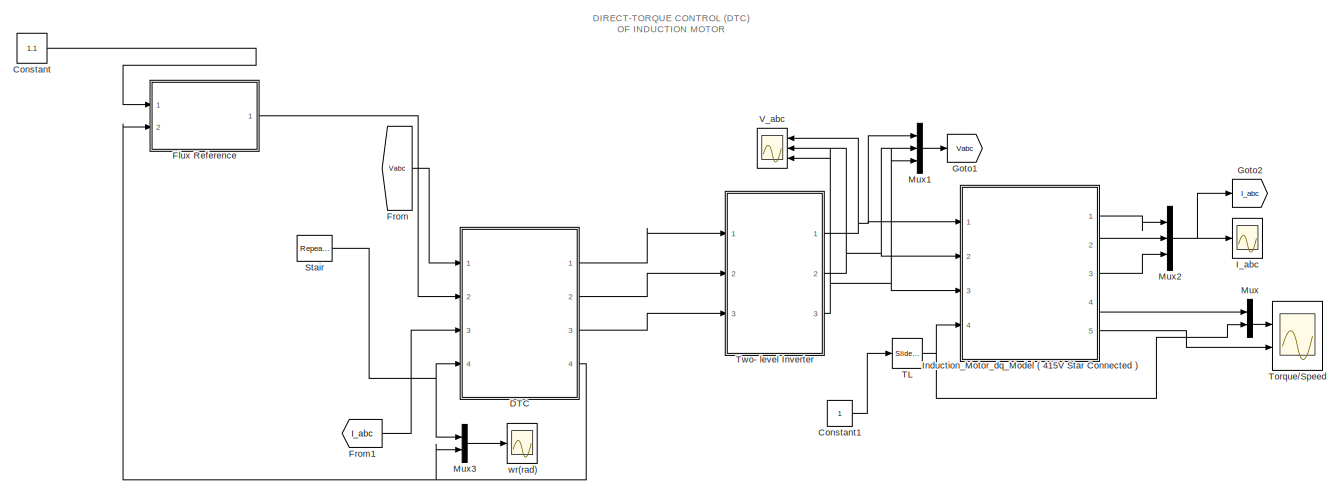
[diagram: root canvas - part 1/2, most of the canvas]
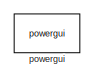
[diagram: root canvas - part 2/2, top right region]
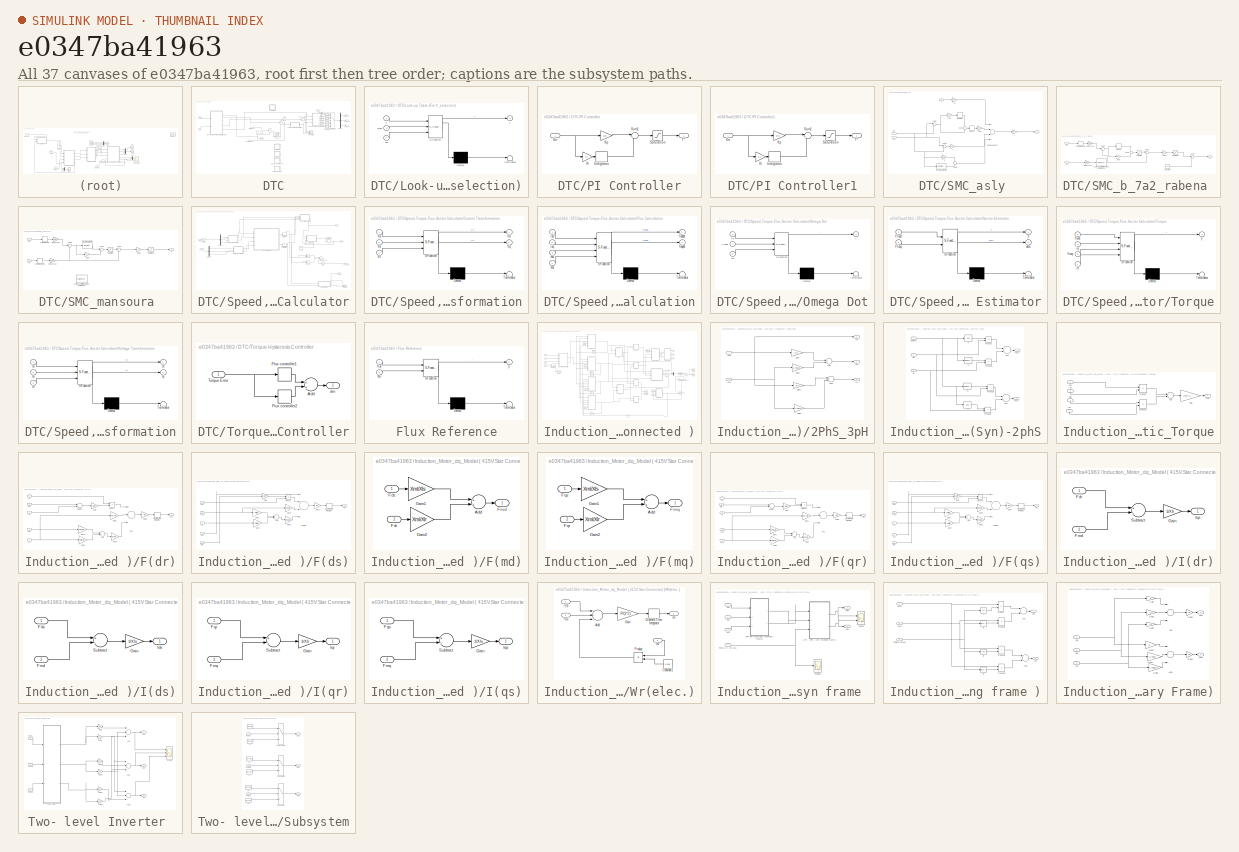
[diagram: thumbnail index - all 37 canvases of the model, root first then tree order]
MODEL slx_e0347ba41963
KIND model
CONFIG AbsTol = auto
CONFIG EnableMultiTasking = on
CONFIG FixedStep = Ts
CONFIG InitFcn = Vdc=560;Ts=2e-5;wb=2*pi*50;Rr=2.486;\nRs=4.125;Lls=0.01557;Llr=0.01557;Lm=0.2848;\nXls=4.8915;\nXlr=4.8915;\nXm=89.4726;\nXml=2.3807;\nP=4;\nJ=0.139;\n\nKp=8;\nKi=35;\nTlim=15;\n\nfc=3800;\nF=0.001;
CONFIG MaxStep = Ts
CONFIG MinStep = auto
CONFIG RelTol = 1e-3
CONFIG SampleTimeConstraint = Unconstrained
CONFIG Solver = FixedStepDiscrete
CONFIG SolverName = FixedStepDiscrete
CONFIG StartTime = 0.0
CONFIG StopTime = 60
BLOCK [Constant] Constant
  Value = 1.1
BLOCK [Constant] Constant1
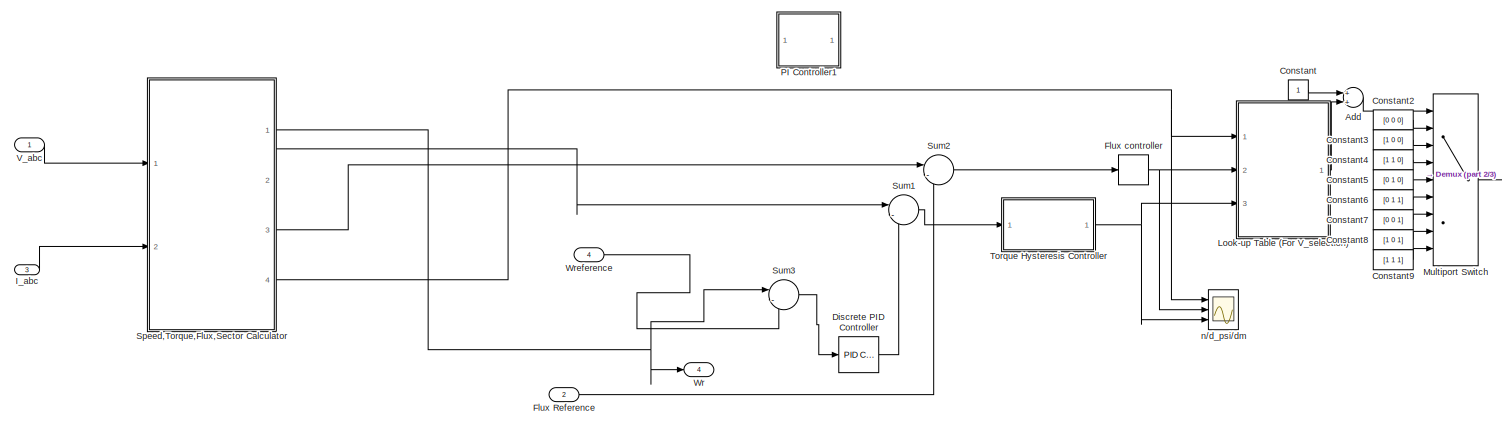
[diagram: DTC - part 1/3, full width, top band]
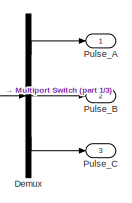
[diagram: DTC - part 2/3, top right region]
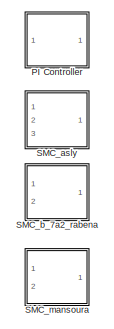
[diagram: DTC - part 3/3, bottom center region]
BLOCK [SubSystem] DTC
  Ports = [4, 4]
  RequestExecContextInheritance = off
  Variant = off
BLOCK [Sum] DTC/Add
  InputSameDT = off
  OutDataTypeStr = Inherit: Inherit via internal rule
  Ports = [2, 1]
  SaturateOnIntegerOverflow = off
BLOCK [Constant] DTC/Constant
BLOCK [Constant] DTC/Constant2
  Value = [0 0 0]
BLOCK [Constant] DTC/Constant3
  Value = [1 0 0]
BLOCK [Constant] DTC/Constant4
  Value = [1 1 0]
BLOCK [Constant] DTC/Constant5
  Value = [0 1 0]
BLOCK [Constant] DTC/Constant6
  Value = [0 1 1]
BLOCK [Constant] DTC/Constant7
  Value = [0 0 1]
BLOCK [Constant] DTC/Constant8
  Value = [1 0 1]
BLOCK [Constant] DTC/Constant9
  Value = [1 1 1]
BLOCK [Demux] DTC/Demux
  DisplayOption = bar
  Outputs = 3
  Ports = [1, 3]
BLOCK [Reference] DTC/Discrete PID Controller  REF=simulink/Continuous/PID Controller
  Ports = [1, 1]
  SourceBlock = simulink/Continuous/PID Controller
  SourceProductBaseCode = SL
  SourceProductName = Simulink
  SourceType = PID 1dof
BLOCK [Inport] DTC/Flux Reference
  IconDisplay = Port number
  Port = 2
BLOCK [Relay] DTC/Flux controller
  InputProcessing = Elements as channels (sample based)
  OffSwitchValue = -0.02
  OnSwitchValue = 0.02
BLOCK [Inport] DTC/I_abc
  IconDisplay = Port number
  Port = 3
BLOCK [SubSystem] DTC/Look-up Table (For V_selection)
  ErrorFcn = Stateflow.Translate.translate
  PermitHierarchicalResolution = ExplicitOnly
  Ports = [3, 1]
  RequestExecContextInheritance = off
  SFBlockType = MATLAB Function
  TreatAsAtomicUnit = on
  Variant = off
BLOCK [Demux] DTC/Look-up Table (For V_selection)/ Demux 
  Outputs = 1
  Ports = [1, 1]
BLOCK [S-Function] DTC/Look-up Table (For V_selection)/ SFunction 
  EnableBusSupport = on
  FunctionName = sf_sfun
  PortCounts = [3 2]
  Ports = [3, 2]
  SFcnIsStateOwnerBlock = off
  SFunctionDeploymentMode = off
  Tag = Stateflow S-Function DTCFinal 1
BLOCK [Terminator] DTC/Look-up Table (For V_selection)/ Terminator 
BLOCK [Inport] DTC/Look-up Table (For V_selection)/d_psi
  IconDisplay = Port number
  Port = 2
BLOCK [Inport] DTC/Look-up Table (For V_selection)/dm
  IconDisplay = Port number
  Port = 3
BLOCK [Inport] DTC/Look-up Table (For V_selection)/n
  IconDisplay = Port number
BLOCK [Outport] DTC/Look-up Table (For V_selection)/v
  IconDisplay = Port number
BLOCK [MultiPortSwitch] DTC/Multiport Switch
  InputSameDT = off
  Inputs = 8
  Ports = [9, 1]
  SaturateOnIntegerOverflow = off
BLOCK [SubSystem] DTC/PI Controller
  Commented = on
  Ports = [1, 1]
  RequestExecContextInheritance = off
  Variant = off
BLOCK [Inport] DTC/PI Controller/Err
  IconDisplay = Port number
BLOCK [DiscreteIntegrator] DTC/PI Controller/Integrator 
  ICPrevOutput = DiscIntNeverNeededParam
  ICPrevScaledInput = DiscIntNeverNeededParam
  InitialConditionSetting = State (most efficient)
  LimitOutput = on
  LowerSaturationLimit = -Tlim
  Ports = [1, 1]
  SampleTime = Ts
  UpperSaturationLimit = Tlim
BLOCK [Gain] DTC/PI Controller/Ki
  Gain = Ki
  OutDataTypeStr = Inherit: Inherit via internal rule
  ParamDataTypeStr = Inherit: Inherit via internal rule
  SaturateOnIntegerOverflow = off
BLOCK [Gain] DTC/PI Controller/Kp
  Gain = Kp
  OutDataTypeStr = Inherit: Inherit via internal rule
  ParamDataTypeStr = Inherit: Inherit via internal rule
  SaturateOnIntegerOverflow = off
BLOCK [Saturate] DTC/PI Controller/Saturation
  InputPortMap = u0
  LowerLimit = -Tlim
  Ports = [1, 1]
  UpperLimit = Tlim
BLOCK [Sum] DTC/PI Controller/Sum1
  IconShape = round
  InputSameDT = off
  Inputs = |++
  OutDataTypeStr = Inherit: Inherit via internal rule
  Ports = [2, 1]
  SaturateOnIntegerOverflow = off
BLOCK [Outport] DTC/PI Controller/T*
  IconDisplay = Port number
BLOCK [SubSystem] DTC/PI Controller1
  Commented = on
  Ports = [1, 1]
  RequestExecContextInheritance = off
  Variant = off
BLOCK [Inport] DTC/PI Controller1/Err
  IconDisplay = Port number
BLOCK [DiscreteIntegrator] DTC/PI Controller1/Integrator 
  ICPrevOutput = DiscIntNeverNeededParam
  ICPrevScaledInput = DiscIntNeverNeededParam
  InitialConditionSetting = State (most efficient)
  LimitOutput = on
  LowerSaturationLimit = -Tlim
  Ports = [1, 1]
  SampleTime = Ts
  UpperSaturationLimit = Tlim
BLOCK [Gain] DTC/PI Controller1/Ki
  Gain = Ki
  OutDataTypeStr = Inherit: Inherit via internal rule
  ParamDataTypeStr = Inherit: Inherit via internal rule
  SaturateOnIntegerOverflow = off
BLOCK [Gain] DTC/PI Controller1/Kp
  Gain = Kp
  OutDataTypeStr = Inherit: Inherit via internal rule
  ParamDataTypeStr = Inherit: Inherit via internal rule
  SaturateOnIntegerOverflow = off
BLOCK [Saturate] DTC/PI Controller1/Saturation
  InputPortMap = u0
  LowerLimit = -Tlim
  Ports = [1, 1]
  UpperLimit = Tlim
BLOCK [Sum] DTC/PI Controller1/Sum1
  IconShape = round
  InputSameDT = off
  Inputs = |++
  OutDataTypeStr = Inherit: Inherit via internal rule
  Ports = [2, 1]
  SaturateOnIntegerOverflow = off
BLOCK [Outport] DTC/PI Controller1/T*
  IconDisplay = Port number
BLOCK [Outport] DTC/Pulse_A
  IconDisplay = Port number
BLOCK [Outport] DTC/Pulse_B
  IconDisplay = Port number
  Port = 2
BLOCK [Outport] DTC/Pulse_C
  IconDisplay = Port number
  Port = 3
BLOCK [SubSystem] DTC/SMC_asly 
  Commented = on
  Ports = [3, 1]
  RequestExecContextInheritance = off
  Variant = off
BLOCK [Gain] DTC/SMC_asly /1//J
  Gain = 16.6666667
  OutDataTypeStr = Inherit: Inherit via internal rule
  ParamDataTypeStr = Inherit: Inherit via internal rule
  SaturateOnIntegerOverflow = off
BLOCK [Gain] DTC/SMC_asly /Beta
  Gain = 30
  OutDataTypeStr = Inherit: Inherit via internal rule
  ParamDataTypeStr = Inherit: Inherit via internal rule
  SaturateOnIntegerOverflow = off
BLOCK [Reference] DTC/SMC_asly /Discrete Derivative  REF=simulink/Discrete/Discrete Derivative
  Ports = [1, 1]
  SourceBlock = simulink/Discrete/Discrete Derivative
  SourceProductBaseCode = SL
  SourceProductName = Simulink
  SourceType = Discrete Derivative
BLOCK [Sum] DTC/SMC_asly /Expression of T* 
  InputSameDT = off
  Inputs = +-++
  OutDataTypeStr = Inherit: Inherit via internal rule
  Ports = [4, 1]
  SaturateOnIntegerOverflow = off
BLOCK [DiscreteIntegrator] DTC/SMC_asly /Integrator 
  ICPrevOutput = DiscIntNeverNeededParam
  ICPrevScaledInput = DiscIntNeverNeededParam
  InitialConditionSetting = State (most efficient)
  LimitOutput = on
  LowerSaturationLimit = -Tlim
  Ports = [1, 1]
  SampleTime = Ts
  UpperSaturationLimit = Tlim
  gainval = 1
BLOCK [Gain] DTC/SMC_asly /J
  Gain = 0.06
  OutDataTypeStr = Inherit: Inherit via internal rule
  ParamDataTypeStr = Inherit: Inherit via internal rule
  SaturateOnIntegerOverflow = off
BLOCK [Gain] DTC/SMC_asly /K 
  Gain = -10000
  OutDataTypeStr = Inherit: Inherit via internal rule
  ParamDataTypeStr = Inherit: Inherit via internal rule
  SaturateOnIntegerOverflow = off
BLOCK [Relay] DTC/SMC_asly /Sign(S)
  InputProcessing = Elements as channels (sample based)
  OffSwitchValue = -0.02
  OnSwitchValue = 0.02
BLOCK [Sum] DTC/SMC_asly /Sum1
  IconShape = round
  InputSameDT = off
  Inputs = -|+
  OutDataTypeStr = Inherit: Inherit via internal rule
  Ports = [2, 1]
  SaturateOnIntegerOverflow = off
BLOCK [Sum] DTC/SMC_asly /Sum2
  IconShape = round
  InputSameDT = off
  Inputs = |+-
  OutDataTypeStr = Inherit: Inherit via internal rule
  Ports = [2, 1]
  SaturateOnIntegerOverflow = off
BLOCK [Sum] DTC/SMC_asly /Sum5
  IconShape = round
  InputSameDT = off
  Inputs = |+-
  OutDataTypeStr = Inherit: Inherit via internal rule
  Ports = [2, 1]
  SaturateOnIntegerOverflow = off
BLOCK [Sum] DTC/SMC_asly /Sum6
  IconShape = round
  InputSameDT = off
  Inputs = +|+
  OutDataTypeStr = Inherit: Inherit via internal rule
  Ports = [2, 1]
  SaturateOnIntegerOverflow = off
BLOCK [Outport] DTC/SMC_asly /T*
  IconDisplay = Port number
BLOCK [Inport] DTC/SMC_asly /Tl 
  IconDisplay = Port number
  Port = 3
BLOCK [Inport] DTC/SMC_asly /Wr
  IconDisplay = Port number
  Port = 2
BLOCK [Inport] DTC/SMC_asly /Wr* 
  IconDisplay = Port number
BLOCK [Gain] DTC/SMC_asly /a
  Gain = 0.1666667
  OutDataTypeStr = Inherit: Inherit via internal rule
  ParamDataTypeStr = Inherit: Inherit via internal rule
  SaturateOnIntegerOverflow = off
BLOCK [Gain] DTC/SMC_asly /k-a
  Gain = -10000.16667
  OutDataTypeStr = Inherit: Inherit via internal rule
  ParamDataTypeStr = Inherit: Inherit via internal rule
  SaturateOnIntegerOverflow = off
BLOCK [SubSystem] DTC/SMC_b_7a2_rabena 
  Commented = on
  Ports = [2, 1]
  RequestExecContextInheritance = off
  Variant = off
BLOCK [Constant] DTC/SMC_b_7a2_rabena /Constant
  Value = 15
BLOCK [Gain] DTC/SMC_b_7a2_rabena /Gain
  Gain = 500
  OutDataTypeStr = Inherit: Inherit via internal rule
  ParamDataTypeStr = Inherit: Inherit via internal rule
  SaturateOnIntegerOverflow = off
BLOCK [Gain] DTC/SMC_b_7a2_rabena /Gain1
  Gain = 300
  OutDataTypeStr = Inherit: Inherit via internal rule
  ParamDataTypeStr = Inherit: Inherit via internal rule
  SaturateOnIntegerOverflow = off
BLOCK [DiscreteIntegrator] DTC/SMC_b_7a2_rabena /Integrator 
  ICPrevOutput = DiscIntNeverNeededParam
  ICPrevScaledInput = DiscIntNeverNeededParam
  InitialConditionSetting = State (most efficient)
  LimitOutput = on
  LowerSaturationLimit = -Tlim
  Ports = [1, 1]
  SampleTime = Ts
  UpperSaturationLimit = Tlim
  gainval = 1
BLOCK [Reference] DTC/SMC_b_7a2_rabena /Low-Pass Filter (Discrete or Continuous)  REF=eeGeneralControl/Low-Pass Filter
(Discrete or Continuous)
  Ports = [1, 1]
  SourceBlock = eeGeneralControl/Low-Pass Filter\n(Discrete or Continuous)
  SourceProductBaseCode = PS
  SourceProductName = Simscape Electrical
  SourceType = Low-Pass Filter (Discrete or Continuous)
BLOCK [Saturate] DTC/SMC_b_7a2_rabena /Saturation
  InputPortMap = u0
  LowerLimit = -Tlim
  Ports = [1, 1]
  UpperLimit = Tlim
BLOCK [Saturate] DTC/SMC_b_7a2_rabena /Saturation1
  InputPortMap = u0
  LowerLimit = -Tlim
  Ports = [1, 1]
  UpperLimit = Tlim
BLOCK [Sum] DTC/SMC_b_7a2_rabena /Sum1
  IconShape = round
  InputSameDT = off
  Inputs = +|+
  OutDataTypeStr = Inherit: Inherit via internal rule
  Ports = [2, 1]
  SaturateOnIntegerOverflow = off
BLOCK [Sum] DTC/SMC_b_7a2_rabena /Sum2
  IconShape = round
  InputSameDT = off
  Inputs = |+-
  OutDataTypeStr = Inherit: Inherit via internal rule
  Ports = [2, 1]
  SaturateOnIntegerOverflow = off
BLOCK [Sum] DTC/SMC_b_7a2_rabena /Sum3
  IconShape = round
  InputSameDT = off
  Inputs = |++
  OutDataTypeStr = Inherit: Inherit via internal rule
  Ports = [2, 1]
  SaturateOnIntegerOverflow = off
BLOCK [Sum] DTC/SMC_b_7a2_rabena /Sum4
  IconShape = round
  InputSameDT = off
  Inputs = |++
  OutDataTypeStr = Inherit: Inherit via internal rule
  Ports = [2, 1]
  SaturateOnIntegerOverflow = off
BLOCK [Outport] DTC/SMC_b_7a2_rabena /T*
  IconDisplay = Port number
BLOCK [Inport] DTC/SMC_b_7a2_rabena /Wr
  IconDisplay = Port number
  Port = 2
BLOCK [Inport] DTC/SMC_b_7a2_rabena /Wr* 
  IconDisplay = Port number
BLOCK [ZeroOrderHold] DTC/SMC_b_7a2_rabena /Zero-Order Hold
  SampleTime = -1
BLOCK [Gain] DTC/SMC_b_7a2_rabena /rad//sec2hz 
  Gain = 1/(2*pi)
  OutDataTypeStr = Inherit: Inherit via internal rule
  ParamDataTypeStr = Inherit: Inherit via internal rule
  SaturateOnIntegerOverflow = off
BLOCK [SubSystem] DTC/SMC_mansoura 
  Commented = on
  Ports = [2, 1]
  RequestExecContextInheritance = off
  Variant = off
BLOCK [Reference] DTC/SMC_mansoura /Discrete Derivative  REF=simulink/Discrete/Discrete Derivative
  Ports = [1, 1]
  SourceBlock = simulink/Discrete/Discrete Derivative
  SourceProductBaseCode = SL
  SourceProductName = Simulink
  SourceType = Discrete Derivative
BLOCK [Gain] DTC/SMC_mansoura /Gain
  Gain = 8
  OutDataTypeStr = Inherit: Inherit via internal rule
  ParamDataTypeStr = Inherit: Inherit via internal rule
  SaturateOnIntegerOverflow = off
BLOCK [Gain] DTC/SMC_mansoura /Gain1
  Gain = 8
  OutDataTypeStr = Inherit: Inherit via internal rule
  ParamDataTypeStr = Inherit: Inherit via internal rule
  SaturateOnIntegerOverflow = off
BLOCK [Reference] DTC/SMC_mansoura /Low-Pass Filter (Discrete or Continuous)  REF=eeGeneralControl/Low-Pass Filter
(Discrete or Continuous)
  Commented = on
  Ports = [1, 1]
  SourceBlock = eeGeneralControl/Low-Pass Filter\n(Discrete or Continuous)
  SourceProductBaseCode = PS
  SourceProductName = Simscape Electrical
  SourceType = Low-Pass Filter (Discrete or Continuous)
BLOCK [Saturate] DTC/SMC_mansoura /Saturation
  InputPortMap = u0
  LowerLimit = -Tlim
  Ports = [1, 1]
  UpperLimit = Tlim
BLOCK [Saturate] DTC/SMC_mansoura /Saturation1
  InputPortMap = u0
  LowerLimit = -Tlim
  Ports = [1, 1]
  UpperLimit = Tlim
BLOCK [Sum] DTC/SMC_mansoura /Sum1
  IconShape = round
  InputSameDT = off
  Inputs = +|+
  OutDataTypeStr = Inherit: Inherit via internal rule
  Ports = [2, 1]
  SaturateOnIntegerOverflow = off
BLOCK [Sum] DTC/SMC_mansoura /Sum2
  IconShape = round
  InputSameDT = off
  Inputs = |+-
  OutDataTypeStr = Inherit: Inherit via internal rule
  Ports = [2, 1]
  SaturateOnIntegerOverflow = off
BLOCK [Sum] DTC/SMC_mansoura /Sum3
  IconShape = round
  InputSameDT = off
  Inputs = |++
  OutDataTypeStr = Inherit: Inherit via internal rule
  Ports = [2, 1]
  SaturateOnIntegerOverflow = off
BLOCK [Outport] DTC/SMC_mansoura /T*
  IconDisplay = Port number
BLOCK [Inport] DTC/SMC_mansoura /Wr
  IconDisplay = Port number
  Port = 2
BLOCK [Inport] DTC/SMC_mansoura /Wr* 
  IconDisplay = Port number
BLOCK [ZeroOrderHold] DTC/SMC_mansoura /Zero-Order Hold
  SampleTime = -1
BLOCK [ZeroOrderHold] DTC/SMC_mansoura /Zero-Order Hold1
  SampleTime = -1
BLOCK [Gain] DTC/SMC_mansoura /rad//sec2hz 
  Gain = 1/(2*pi)
  OutDataTypeStr = Inherit: Inherit via internal rule
  ParamDataTypeStr = Inherit: Inherit via internal rule
  SaturateOnIntegerOverflow = off
BLOCK [SubSystem] DTC/Speed,Torque,Flux,Sector Calculator
  Ports = [2, 4]
  RequestExecContextInheritance = off
  Variant = off
BLOCK [Sum] DTC/Speed,Torque,Flux,Sector Calculator/Add3
  InputSameDT = off
  OutDataTypeStr = Inherit: Inherit via internal rule
  Ports = [2, 1]
  SaturateOnIntegerOverflow = off
BLOCK [SubSystem] DTC/Speed,Torque,Flux,Sector Calculator/Current Transformation
  ErrorFcn = Stateflow.Translate.translate
  PermitHierarchicalResolution = ExplicitOnly
  Ports = [3, 2]
  RequestExecContextInheritance = off
  SFBlockType = MATLAB Function
  TreatAsAtomicUnit = on
  Variant = off
BLOCK [Demux] DTC/Speed,Torque,Flux,Sector Calculator/Current Transformation/ Demux 
  Outputs = 1
  Ports = [1, 1]
BLOCK [S-Function] DTC/Speed,Torque,Flux,Sector Calculator/Current Transformation/ SFunction 
  EnableBusSupport = on
  FunctionName = sf_sfun
  PortCounts = [3 3]
  Ports = [3, 3]
  SFcnIsStateOwnerBlock = off
  SFunctionDeploymentMode = off
  Tag = Stateflow S-Function DTCFinal 7
BLOCK [Terminator] DTC/Speed,Torque,Flux,Sector Calculator/Current Transformation/ Terminator 
BLOCK [Inport] DTC/Speed,Torque,Flux,Sector Calculator/Current Transformation/Va
  IconDisplay = Port number
BLOCK [Inport] DTC/Speed,Torque,Flux,Sector Calculator/Current Transformation/Vb
  IconDisplay = Port number
  Port = 2
BLOCK [Inport] DTC/Speed,Torque,Flux,Sector Calculator/Current Transformation/Vc
  IconDisplay = Port number
  Port = 3
BLOCK [Outport] DTC/Speed,Torque,Flux,Sector Calculator/Current Transformation/Vd
  IconDisplay = Port number
BLOCK [Outport] DTC/Speed,Torque,Flux,Sector Calculator/Current Transformation/Vq
  IconDisplay = Port number
  Port = 2
BLOCK [Demux] DTC/Speed,Torque,Flux,Sector Calculator/Demux1
  DisplayOption = bar
  Outputs = 3
  Ports = [1, 3]
BLOCK [Demux] DTC/Speed,Torque,Flux,Sector Calculator/Demux2
  DisplayOption = bar
  Outputs = 3
  Ports = [1, 3]
BLOCK [DiscreteIntegrator] DTC/Speed,Torque,Flux,Sector Calculator/Discrete-Time Integrator
  ICPrevOutput = DiscIntNeverNeededParam
  ICPrevScaledInput = DiscIntNeverNeededParam
  InitialConditionSetting = State (most efficient)
  Ports = [1, 1]
  SampleTime = -1
BLOCK [DiscreteIntegrator] DTC/Speed,Torque,Flux,Sector Calculator/Discrete-Time Integrator1
  ICPrevOutput = DiscIntNeverNeededParam
  ICPrevScaledInput = DiscIntNeverNeededParam
  InitialConditionSetting = State (most efficient)
  Ports = [1, 1]
  SampleTime = -1
BLOCK [DiscreteIntegrator] DTC/Speed,Torque,Flux,Sector Calculator/Discrete-Time Integrator2
  ICPrevOutput = DiscIntNeverNeededParam
  ICPrevScaledInput = DiscIntNeverNeededParam
  InitialConditionSetting = State (most efficient)
  Ports = [1, 1]
  SampleTime = -1
BLOCK [Outport] DTC/Speed,Torque,Flux,Sector Calculator/Flux Actual
  IconDisplay = Port number
  Port = 3
BLOCK [SubSystem] DTC/Speed,Torque,Flux,Sector Calculator/Flux Calculation
  ErrorFcn = Stateflow.Translate.translate
  PermitHierarchicalResolution = ExplicitOnly
  Ports = [4, 2]
  RequestExecContextInheritance = off
  SFBlockType = MATLAB Function
  TreatAsAtomicUnit = on
  Variant = off
BLOCK [Demux] DTC/Speed,Torque,Flux,Sector Calculator/Flux Calculation/ Demux 
  Outputs = 1
  Ports = [1, 1]
BLOCK [S-Function] DTC/Speed,Torque,Flux,Sector Calculator/Flux Calculation/ SFunction 
  EnableBusSupport = on
  FunctionName = sf_sfun
  PortCounts = [4 3]
  Ports = [4, 3]
  SFcnIsStateOwnerBlock = off
  SFunctionDeploymentMode = off
  Tag = Stateflow S-Function DTCFinal 9
BLOCK [Terminator] DTC/Speed,Torque,Flux,Sector Calculator/Flux Calculation/ Terminator 
BLOCK [Outport] DTC/Speed,Torque,Flux,Sector Calculator/Flux Calculation/fsddot
  IconDisplay = Port number
BLOCK [Outport] DTC/Speed,Torque,Flux,Sector Calculator/Flux Calculation/fsqdot
  IconDisplay = Port number
  Port = 2
BLOCK [Inport] DTC/Speed,Torque,Flux,Sector Calculator/Flux Calculation/isd
  IconDisplay = Port number
BLOCK [Inport] DTC/Speed,Torque,Flux,Sector Calculator/Flux Calculation/isq
  IconDisplay = Port number
  Port = 2
BLOCK [Inport] DTC/Speed,Torque,Flux,Sector Calculator/Flux Calculation/vsd
  IconDisplay = Port number
  Port = 3
BLOCK [Inport] DTC/Speed,Torque,Flux,Sector Calculator/Flux Calculation/vsq
  IconDisplay = Port number
  Port = 4
BLOCK [Inport] DTC/Speed,Torque,Flux,Sector Calculator/I_abc
  IconDisplay = Port number
  Port = 2
BLOCK [SubSystem] DTC/Speed,Torque,Flux,Sector Calculator/Omega Dot
  ErrorFcn = Stateflow.Translate.translate
  PermitHierarchicalResolution = ExplicitOnly
  Ports = [3, 1]
  RequestExecContextInheritance = off
  SFBlockType = MATLAB Function
  TreatAsAtomicUnit = on
  Variant = off
BLOCK [Demux] DTC/Speed,Torque,Flux,Sector Calculator/Omega Dot/ Demux 
  Outputs = 1
  Ports = [1, 1]
BLOCK [S-Function] DTC/Speed,Torque,Flux,Sector Calculator/Omega Dot/ SFunction 
  EnableBusSupport = on
  FunctionName = sf_sfun
  PortCounts = [3 2]
  Ports = [3, 2]
  SFcnIsStateOwnerBlock = off
  SFunctionDeploymentMode = off
  Tag = Stateflow S-Function DTCFinal 6
BLOCK [Terminator] DTC/Speed,Torque,Flux,Sector Calculator/Omega Dot/ Terminator 
BLOCK [Inport] DTC/Speed,Torque,Flux,Sector Calculator/Omega Dot/Te
  IconDisplay = Port number
BLOCK [Inport] DTC/Speed,Torque,Flux,Sector Calculator/Omega Dot/Tload
  IconDisplay = Port number
  Port = 2
BLOCK [Inport] DTC/Speed,Torque,Flux,Sector Calculator/Omega Dot/Wr
  IconDisplay = Port number
  Port = 3
BLOCK [Outport] DTC/Speed,Torque,Flux,Sector Calculator/Omega Dot/y
  IconDisplay = Port number
BLOCK [Product] DTC/Speed,Torque,Flux,Sector Calculator/Product1
  InputSameDT = off
  OutDataTypeStr = Inherit: Inherit via internal rule
  Ports = [2, 1]
  RndMeth = Floor
  SaturateOnIntegerOverflow = off
BLOCK [Product] DTC/Speed,Torque,Flux,Sector Calculator/Product2
  InputSameDT = off
  OutDataTypeStr = Inherit: Inherit via internal rule
  Ports = [2, 1]
  RndMeth = Floor
  SaturateOnIntegerOverflow = off
BLOCK [Scope] DTC/Speed,Torque,Flux,Sector Calculator/Scope1
  NumInputPorts = 2
  Ports = [2]
  ScopeSpecificationString = Simulink.scopes.TimeScopeBlockCfg('CurrentConfiguration', extmgr.ConfigurationSet(extmgr.Configuration('Core','General UI',true),extmgr.Configuration('Core','Source UI',true),extmgr.Configuration('Sources','WiredSimulink',true,'DataLoggingVariableName','ScopeData2'),extmgr.Configuration('Visuals','Time Domain',true,'SerializedDisplays',{struct('MinYLimReal','0.375','MaxYLimReal','6.625','YLabelRea...<+2124ch>
BLOCK [Outport] DTC/Speed,Torque,Flux,Sector Calculator/Sector
  IconDisplay = Port number
  Port = 4
BLOCK [SubSystem] DTC/Speed,Torque,Flux,Sector Calculator/Sector Estimator
  ErrorFcn = Stateflow.Translate.translate
  PermitHierarchicalResolution = ExplicitOnly
  Ports = [2, 2]
  RequestExecContextInheritance = off
  SFBlockType = MATLAB Function
  TreatAsAtomicUnit = on
  Variant = off
BLOCK [Demux] DTC/Speed,Torque,Flux,Sector Calculator/Sector Estimator/ Demux 
  Outputs = 1
  Ports = [1, 1]
BLOCK [S-Function] DTC/Speed,Torque,Flux,Sector Calculator/Sector Estimator/ SFunction 
  EnableBusSupport = on
  FunctionName = sf_sfun
  PortCounts = [2 3]
  Ports = [2, 3]
  SFcnIsStateOwnerBlock = off
  SFunctionDeploymentMode = off
  Tag = Stateflow S-Function DTCFinal 8
BLOCK [Terminator] DTC/Speed,Torque,Flux,Sector Calculator/Sector Estimator/ Terminator 
BLOCK [Inport] DTC/Speed,Torque,Flux,Sector Calculator/Sector Estimator/Fluxd
  IconDisplay = Port number
BLOCK [Inport] DTC/Speed,Torque,Flux,Sector Calculator/Sector Estimator/Fluxq
  IconDisplay = Port number
  Port = 2
BLOCK [Outport] DTC/Speed,Torque,Flux,Sector Calculator/Sector Estimator/deta
  IconDisplay = Port number
  Port = 2
BLOCK [Outport] DTC/Speed,Torque,Flux,Sector Calculator/Sector Estimator/n
  IconDisplay = Port number
BLOCK [Sqrt] DTC/Speed,Torque,Flux,Sector Calculator/Sqrt
BLOCK [Constant] DTC/Speed,Torque,Flux,Sector Calculator/TLoad
  SampleTime = -1
  Value = 14
  VectorParams1D = off
BLOCK [Outport] DTC/Speed,Torque,Flux,Sector Calculator/Te
  IconDisplay = Port number
  Port = 2
BLOCK [SubSystem] DTC/Speed,Torque,Flux,Sector Calculator/Torque
  ErrorFcn = Stateflow.Translate.translate
  PermitHierarchicalResolution = ExplicitOnly
  Ports = [4, 1]
  RequestExecContextInheritance = off
  SFBlockType = MATLAB Function
  TreatAsAtomicUnit = on
  Variant = off
BLOCK [Demux] DTC/Speed,Torque,Flux,Sector Calculator/Torque/ Demux 
  Outputs = 1
  Ports = [1, 1]
BLOCK [S-Function] DTC/Speed,Torque,Flux,Sector Calculator/Torque/ SFunction 
  EnableBusSupport = on
  FunctionName = sf_sfun
  PortCounts = [4 2]
  Ports = [4, 2]
  SFcnIsStateOwnerBlock = off
  SFunctionDeploymentMode = off
  Tag = Stateflow S-Function DTCFinal 5
BLOCK [Terminator] DTC/Speed,Torque,Flux,Sector Calculator/Torque/ Terminator 
BLOCK [Inport] DTC/Speed,Torque,Flux,Sector Calculator/Torque/fluxd
  IconDisplay = Port number
BLOCK [Inport] DTC/Speed,Torque,Flux,Sector Calculator/Torque/fluxq
  IconDisplay = Port number
  Port = 3
BLOCK [Inport] DTC/Speed,Torque,Flux,Sector Calculator/Torque/id
  IconDisplay = Port number
  Port = 4
BLOCK [Inport] DTC/Speed,Torque,Flux,Sector Calculator/Torque/iq
  IconDisplay = Port number
  Port = 2
BLOCK [Outport] DTC/Speed,Torque,Flux,Sector Calculator/Torque/y
  IconDisplay = Port number
BLOCK [UnitDelay] DTC/Speed,Torque,Flux,Sector Calculator/Unit Delay
  InputProcessing = Elements as channels (sample based)
  SampleTime = -1
BLOCK [Inport] DTC/Speed,Torque,Flux,Sector Calculator/V_abc
  IconDisplay = Port number
BLOCK [SubSystem] DTC/Speed,Torque,Flux,Sector Calculator/Voltage Transformation
  ErrorFcn = Stateflow.Translate.translate
  PermitHierarchicalResolution = ExplicitOnly
  Ports = [3, 2]
  RequestExecContextInheritance = off
  SFBlockType = MATLAB Function
  TreatAsAtomicUnit = on
  Variant = off
BLOCK [Demux] DTC/Speed,Torque,Flux,Sector Calculator/Voltage Transformation/ Demux 
  Outputs = 1
  Ports = [1, 1]
BLOCK [S-Function] DTC/Speed,Torque,Flux,Sector Calculator/Voltage Transformation/ SFunction 
  EnableBusSupport = on
  FunctionName = sf_sfun
  PortCounts = [3 3]
  Ports = [3, 3]
  SFcnIsStateOwnerBlock = off
  SFunctionDeploymentMode = off
  Tag = Stateflow S-Function DTCFinal 4
BLOCK [Terminator] DTC/Speed,Torque,Flux,Sector Calculator/Voltage Transformation/ Terminator 
BLOCK [Inport] DTC/Speed,Torque,Flux,Sector Calculator/Voltage Transformation/Ia
  IconDisplay = Port number
BLOCK [Inport] DTC/Speed,Torque,Flux,Sector Calculator/Voltage Transformation/Ib
  IconDisplay = Port number
  Port = 2
BLOCK [Inport] DTC/Speed,Torque,Flux,Sector Calculator/Voltage Transformation/Ic
  IconDisplay = Port number
  Port = 3
BLOCK [Outport] DTC/Speed,Torque,Flux,Sector Calculator/Voltage Transformation/Id
  IconDisplay = Port number
BLOCK [Outport] DTC/Speed,Torque,Flux,Sector Calculator/Voltage Transformation/Iq
  IconDisplay = Port number
  Port = 2
BLOCK [Outport] DTC/Speed,Torque,Flux,Sector Calculator/Wr
  IconDisplay = Port number
BLOCK [Sum] DTC/Sum1
  IconShape = round
  InputSameDT = off
  Inputs = |-+
  OutDataTypeStr = Inherit: Inherit via internal rule
  Ports = [2, 1]
  SaturateOnIntegerOverflow = off
BLOCK [Sum] DTC/Sum2
  IconShape = round
  InputSameDT = off
  Inputs = |-+
  OutDataTypeStr = Inherit: Inherit via internal rule
  Ports = [2, 1]
  SaturateOnIntegerOverflow = off
BLOCK [Sum] DTC/Sum3
  IconShape = round
  InputSameDT = off
  Inputs = |-+
  OutDataTypeStr = Inherit: Inherit via internal rule
  Ports = [2, 1]
  SaturateOnIntegerOverflow = off
BLOCK [SubSystem] DTC/Torque Hysteresis Controller
  Ports = [1, 1]
  RequestExecContextInheritance = off
  Variant = off
BLOCK [Sum] DTC/Torque Hysteresis Controller/Add
  InputSameDT = off
  OutDataTypeStr = Inherit: Inherit via internal rule
  Ports = [2, 1]
  SaturateOnIntegerOverflow = off
BLOCK [Relay] DTC/Torque Hysteresis Controller/Flux controller1
  InputProcessing = Elements as channels (sample based)
  OffSwitchValue = 0
  OnSwitchValue = 0.2
BLOCK [Relay] DTC/Torque Hysteresis Controller/Flux controller2
  InputProcessing = Elements as channels (sample based)
  OffOutputValue = -1
  OffSwitchValue = -0.2
  OnOutputValue = 0
  OnSwitchValue = 0
BLOCK [Inport] DTC/Torque Hysteresis Controller/Torque Error
  IconDisplay = Port number
BLOCK [Outport] DTC/Torque Hysteresis Controller/dm
  IconDisplay = Port number
BLOCK [Inport] DTC/V_abc
  IconDisplay = Port number
BLOCK [Outport] DTC/Wr
  IconDisplay = Port number
  Port = 4
BLOCK [Inport] DTC/Wreference
  IconDisplay = Port number
  Port = 4
BLOCK [Scope] DTC/n//d_psi//dm
  NumInputPorts = 3
  Ports = [3]
  ScopeSpecificationString = Simulink.scopes.TimeScopeBlockCfg('CurrentConfiguration', extmgr.ConfigurationSet(extmgr.Configuration('Core','General UI',true),extmgr.Configuration('Core','Source UI',true),extmgr.Configuration('Sources','WiredSimulink',true,'DataLoggingVariableName','ScopeData5'),extmgr.Configuration('Visuals','Time Domain',true,'SerializedDisplays',{struct('MinYLimReal','0.375','MaxYLimReal','6.625','YLabelRea...<+2793ch>
BLOCK [SubSystem] Flux Reference
  ErrorFcn = Stateflow.Translate.translate
  PermitHierarchicalResolution = ExplicitOnly
  Ports = [2, 1]
  RequestExecContextInheritance = off
  SFBlockType = MATLAB Function
  TreatAsAtomicUnit = on
  Variant = off
BLOCK [Demux] Flux Reference/ Demux 
  Outputs = 1
  Ports = [1, 1]
BLOCK [S-Function] Flux Reference/ SFunction 
  EnableBusSupport = on
  FunctionName = sf_sfun
  PortCounts = [2 2]
  Ports = [2, 2]
  SFcnIsStateOwnerBlock = off
  SFunctionDeploymentMode = off
  Tag = Stateflow S-Function DTCFinal 3
BLOCK [Terminator] Flux Reference/ Terminator 
BLOCK [Inport] Flux Reference/Wr
  IconDisplay = Port number
  Port = 2
BLOCK [Inport] Flux Reference/flux
  IconDisplay = Port number
BLOCK [Outport] Flux Reference/y
  IconDisplay = Port number
BLOCK [From] From
  GotoTag = Vabc
BLOCK [From] From1
  GotoTag = I_abc
BLOCK [Goto] Goto1
  GotoTag = Vabc
BLOCK [Goto] Goto2
  GotoTag = I_abc
BLOCK [Scope] I_abc
  NumInputPorts = 1
  Ports = [1]
  ScopeSpecificationString = Simulink.scopes.TimeScopeBlockCfg('CurrentConfiguration', extmgr.ConfigurationSet(extmgr.Configuration('Core','General UI',true),extmgr.Configuration('Core','Source UI',true),extmgr.Configuration('Sources','WiredSimulink',true,'DataLoggingVariableName','ScopeData2'),extmgr.Configuration('Visuals','Time Domain',true,'SerializedDisplays',{struct('MinYLimReal','-26.28396','MaxYLimReal','30.13845','YL...<+2004ch>
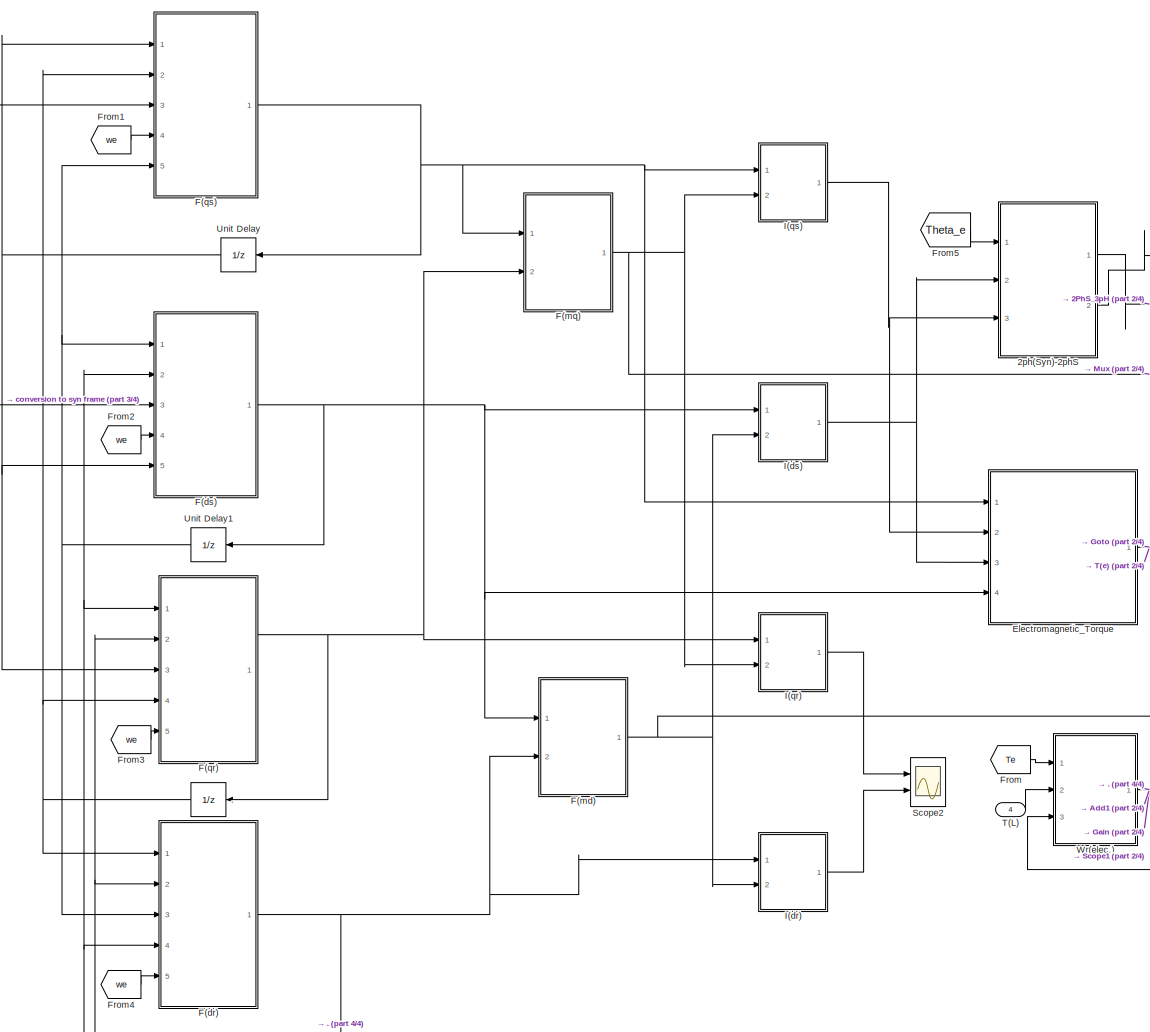
[diagram: Induction_Motor_dq_Model ( 415V Star Connected ) - part 1/4, center side, full height]
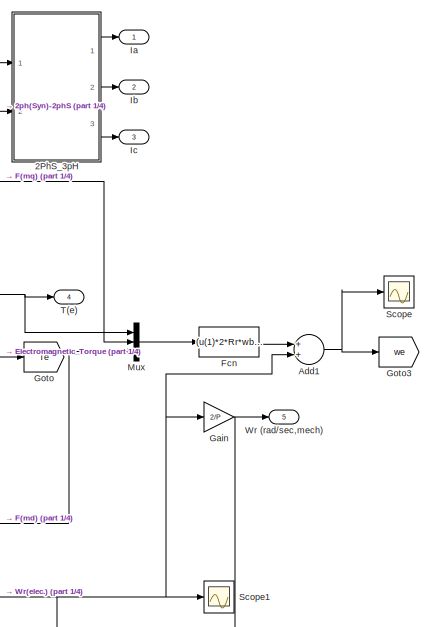
[diagram: Induction_Motor_dq_Model ( 415V Star Connected ) - part 2/4, middle right region]
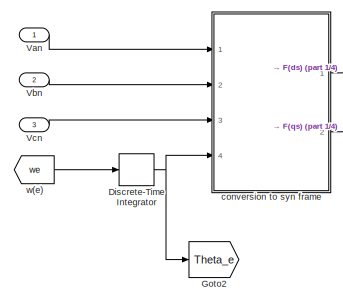
[diagram: Induction_Motor_dq_Model ( 415V Star Connected ) - part 3/4, middle left region]
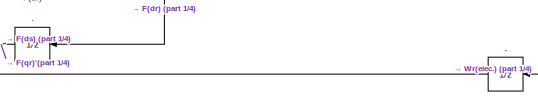
[diagram: Induction_Motor_dq_Model ( 415V Star Connected ) - part 4/4, bottom center region]
BLOCK [SubSystem] Induction_Motor_dq_Model ( 415V Star Connected )
  Ports = [4, 5]
  RequestExecContextInheritance = off
  Variant = off
BLOCK [UnitDelay] Induction_Motor_dq_Model ( 415V Star Connected )/.
  InputProcessing = Elements as channels (sample based)
  SampleTime = Ts
BLOCK [UnitDelay] Induction_Motor_dq_Model ( 415V Star Connected )/. 
  InputProcessing = Elements as channels (sample based)
  SampleTime = Ts
BLOCK [UnitDelay] Induction_Motor_dq_Model ( 415V Star Connected )/.  
  InputProcessing = Elements as channels (sample based)
  SampleTime = Ts
BLOCK [SubSystem] Induction_Motor_dq_Model ( 415V Star Connected )/2PhS_3pH
  Ports = [2, 3]
  RequestExecContextInheritance = off
  Variant = off
BLOCK [Sum] Induction_Motor_dq_Model ( 415V Star Connected )/2PhS_3pH/Add
  InputSameDT = off
  OutDataTypeStr = Inherit: Inherit via internal rule
  Ports = [2, 1]
  SaturateOnIntegerOverflow = off
BLOCK [Sum] Induction_Motor_dq_Model ( 415V Star Connected )/2PhS_3pH/Add1
  InputSameDT = off
  OutDataTypeStr = Inherit: Inherit via internal rule
  Ports = [2, 1]
  SaturateOnIntegerOverflow = off
BLOCK [Gain] Induction_Motor_dq_Model ( 415V Star Connected )/2PhS_3pH/Gain
  Gain = -0.5
  OutDataTypeStr = Inherit: Inherit via internal rule
  ParamDataTypeStr = Inherit: Inherit via internal rule
  SaturateOnIntegerOverflow = off
BLOCK [Gain] Induction_Motor_dq_Model ( 415V Star Connected )/2PhS_3pH/Gain1
  Gain = -1.732/2
  OutDataTypeStr = Inherit: Inherit via internal rule
  ParamDataTypeStr = Inherit: Inherit via internal rule
  SaturateOnIntegerOverflow = off
BLOCK [Gain] Induction_Motor_dq_Model ( 415V Star Connected )/2PhS_3pH/Gain2
  Gain = -0.5
  OutDataTypeStr = Inherit: Inherit via internal rule
  ParamDataTypeStr = Inherit: Inherit via internal rule
  SaturateOnIntegerOverflow = off
BLOCK [Gain] Induction_Motor_dq_Model ( 415V Star Connected )/2PhS_3pH/Gain3
  Gain = 1.732/2
  OutDataTypeStr = Inherit: Inherit via internal rule
  ParamDataTypeStr = Inherit: Inherit via internal rule
  SaturateOnIntegerOverflow = off
BLOCK [Outport] Induction_Motor_dq_Model ( 415V Star Connected )/2PhS_3pH/Ias
  IconDisplay = Port number
BLOCK [Outport] Induction_Motor_dq_Model ( 415V Star Connected )/2PhS_3pH/Ibs
  IconDisplay = Port number
  Port = 2
BLOCK [Outport] Induction_Motor_dq_Model ( 415V Star Connected )/2PhS_3pH/Ics
  IconDisplay = Port number
  Port = 3
BLOCK [Inport] Induction_Motor_dq_Model ( 415V Star Connected )/2PhS_3pH/Idss
  IconDisplay = Port number
  Port = 2
BLOCK [Inport] Induction_Motor_dq_Model ( 415V Star Connected )/2PhS_3pH/Iqss
  IconDisplay = Port number
BLOCK [SubSystem] Induction_Motor_dq_Model ( 415V Star Connected )/2ph(Syn)-2phS
  Ports = [3, 2]
  RequestExecContextInheritance = off
  Variant = off
BLOCK [Outport] Induction_Motor_dq_Model ( 415V Star Connected )/2ph(Syn)-2phS/I(dss)
  IconDisplay = Port number
BLOCK [Outport] Induction_Motor_dq_Model ( 415V Star Connected )/2ph(Syn)-2phS/I(qss)
  IconDisplay = Port number
  Port = 2
BLOCK [Inport] Induction_Motor_dq_Model ( 415V Star Connected )/2ph(Syn)-2phS/Ids
  IconDisplay = Port number
  Port = 2
BLOCK [Sum] Induction_Motor_dq_Model ( 415V Star Connected )/2ph(Syn)-2phS/Idss
  InputSameDT = off
  Inputs = +-
  OutDataTypeStr = Inherit: Inherit via internal rule
  Ports = [2, 1]
  SaturateOnIntegerOverflow = off
BLOCK [Inport] Induction_Motor_dq_Model ( 415V Star Connected )/2ph(Syn)-2phS/Iqs
  IconDisplay = Port number
  Port = 3
BLOCK [Sum] Induction_Motor_dq_Model ( 415V Star Connected )/2ph(Syn)-2phS/Iqss
  InputSameDT = off
  OutDataTypeStr = Inherit: Inherit via internal rule
  Ports = [2, 1]
  SaturateOnIntegerOverflow = off
BLOCK [Product] Induction_Motor_dq_Model ( 415V Star Connected )/2ph(Syn)-2phS/Product
  InputSameDT = off
  OutDataTypeStr = Inherit: Inherit via internal rule
  Ports = [2, 1]
  RndMeth = Floor
  SaturateOnIntegerOverflow = off
BLOCK [Product] Induction_Motor_dq_Model ( 415V Star Connected )/2ph(Syn)-2phS/Product1
  InputSameDT = off
  OutDataTypeStr = Inherit: Inherit via internal rule
  Ports = [2, 1]
  RndMeth = Floor
  SaturateOnIntegerOverflow = off
BLOCK [Product] Induction_Motor_dq_Model ( 415V Star Connected )/2ph(Syn)-2phS/Product2
  InputSameDT = off
  OutDataTypeStr = Inherit: Inherit via internal rule
  Ports = [2, 1]
  RndMeth = Floor
  SaturateOnIntegerOverflow = off
BLOCK [Product] Induction_Motor_dq_Model ( 415V Star Connected )/2ph(Syn)-2phS/Product3
  InputSameDT = off
  OutDataTypeStr = Inherit: Inherit via internal rule
  Ports = [2, 1]
  RndMeth = Floor
  SaturateOnIntegerOverflow = off
BLOCK [Trigonometry] Induction_Motor_dq_Model ( 415V Star Connected )/2ph(Syn)-2phS/T
  Operator = cos
  Ports = [1, 1]
BLOCK [Trigonometry] Induction_Motor_dq_Model ( 415V Star Connected )/2ph(Syn)-2phS/T1
  Ports = [1, 1]
BLOCK [Trigonometry] Induction_Motor_dq_Model ( 415V Star Connected )/2ph(Syn)-2phS/T2
  Ports = [1, 1]
BLOCK [Trigonometry] Induction_Motor_dq_Model ( 415V Star Connected )/2ph(Syn)-2phS/T3
  Operator = cos
  Ports = [1, 1]
BLOCK [Inport] Induction_Motor_dq_Model ( 415V Star Connected )/2ph(Syn)-2phS/Theta(e)
  IconDisplay = Port number
BLOCK [Sum] Induction_Motor_dq_Model ( 415V Star Connected )/Add1
  InputSameDT = off
  OutDataTypeStr = Inherit: Inherit via internal rule
  Ports = [2, 1]
  SaturateOnIntegerOverflow = off
BLOCK [DiscreteIntegrator] Induction_Motor_dq_Model ( 415V Star Connected )/Discrete-Time Integrator
  ICPrevOutput = DiscIntNeverNeededParam
  ICPrevScaledInput = DiscIntNeverNeededParam
  InitialConditionSetting = State (most efficient)
  Ports = [1, 1]
  SampleTime = Ts
BLOCK [SubSystem] Induction_Motor_dq_Model ( 415V Star Connected )/Electromagnetic_Torque
  Ports = [4, 1]
  RequestExecContextInheritance = off
  Variant = off
BLOCK [Sum] Induction_Motor_dq_Model ( 415V Star Connected )/Electromagnetic_Torque/Add
  InputSameDT = off
  Inputs = +-
  OutDataTypeStr = Inherit: Inherit via internal rule
  Ports = [2, 1]
  SaturateOnIntegerOverflow = off
BLOCK [Inport] Induction_Motor_dq_Model ( 415V Star Connected )/Electromagnetic_Torque/Fds
  IconDisplay = Port number
  Port = 4
BLOCK [Inport] Induction_Motor_dq_Model ( 415V Star Connected )/Electromagnetic_Torque/Fqs
  IconDisplay = Port number
BLOCK [Gain] Induction_Motor_dq_Model ( 415V Star Connected )/Electromagnetic_Torque/Gain
  Gain = (3*P)/(4*wb)
  OutDataTypeStr = Inherit: Inherit via internal rule
  ParamDataTypeStr = Inherit: Inherit via internal rule
  SaturateOnIntegerOverflow = off
BLOCK [Inport] Induction_Motor_dq_Model ( 415V Star Connected )/Electromagnetic_Torque/Ids
  IconDisplay = Port number
  Port = 3
BLOCK [Inport] Induction_Motor_dq_Model ( 415V Star Connected )/Electromagnetic_Torque/Iqs
  IconDisplay = Port number
  Port = 2
BLOCK [Product] Induction_Motor_dq_Model ( 415V Star Connected )/Electromagnetic_Torque/Product
  InputSameDT = off
  OutDataTypeStr = Inherit: Inherit via internal rule
  Ports = [2, 1]
  RndMeth = Floor
  SaturateOnIntegerOverflow = off
BLOCK [Product] Induction_Motor_dq_Model ( 415V Star Connected )/Electromagnetic_Torque/Product1
  InputSameDT = off
  OutDataTypeStr = Inherit: Inherit via internal rule
  Ports = [2, 1]
  RndMeth = Floor
  SaturateOnIntegerOverflow = off
BLOCK [Outport] Induction_Motor_dq_Model ( 415V Star Connected )/Electromagnetic_Torque/T(e)
  IconDisplay = Port number
BLOCK [SubSystem] Induction_Motor_dq_Model ( 415V Star Connected )/F(dr)
  Ports = [5, 1]
  RequestExecContextInheritance = off
  Variant = off
BLOCK [Sum] Induction_Motor_dq_Model ( 415V Star Connected )/F(dr)/Add
  InputSameDT = off
  OutDataTypeStr = Inherit: Inherit via internal rule
  Ports = [2, 1]
  SaturateOnIntegerOverflow = off
BLOCK [DiscreteIntegrator] Induction_Motor_dq_Model ( 415V Star Connected )/F(dr)/Discrete-Time Integrator
  ICPrevOutput = DiscIntNeverNeededParam
  ICPrevScaledInput = DiscIntNeverNeededParam
  InitialConditionSetting = State (most efficient)
  Ports = [1, 1]
  SampleTime = Ts
BLOCK [Inport] Induction_Motor_dq_Model ( 415V Star Connected )/F(dr)/Fd_r
  IconDisplay = Port number
  Port = 4
BLOCK [Outport] Induction_Motor_dq_Model ( 415V Star Connected )/F(dr)/Fdr
  IconDisplay = Port number
BLOCK [Inport] Induction_Motor_dq_Model ( 415V Star Connected )/F(dr)/Fds
  IconDisplay = Port number
  Port = 3
BLOCK [Inport] Induction_Motor_dq_Model ( 415V Star Connected )/F(dr)/Fqr
  IconDisplay = Port number
BLOCK [Gain] Induction_Motor_dq_Model ( 415V Star Connected )/F(dr)/Gain
  Gain = 1/wb
  OutDataTypeStr = Inherit: Inherit via internal rule
  ParamDataTypeStr = Inherit: Inherit via internal rule
  SaturateOnIntegerOverflow = off
BLOCK [Gain] Induction_Motor_dq_Model ( 415V Star Connected )/F(dr)/Gain1
  Gain = Rr/Xlr
  OutDataTypeStr = Inherit: Inherit via internal rule
  ParamDataTypeStr = Inherit: Inherit via internal rule
  SaturateOnIntegerOverflow = off
BLOCK [Gain] Induction_Motor_dq_Model ( 415V Star Connected )/F(dr)/Gain2
  Gain = Xml/Xls
  OutDataTypeStr = Inherit: Inherit via internal rule
  ParamDataTypeStr = Inherit: Inherit via internal rule
  SaturateOnIntegerOverflow = off
BLOCK [Gain] Induction_Motor_dq_Model ( 415V Star Connected )/F(dr)/Gain3
  Gain = Xml/Xlr
  OutDataTypeStr = Inherit: Inherit via internal rule
  ParamDataTypeStr = Inherit: Inherit via internal rule
  SaturateOnIntegerOverflow = off
BLOCK [Gain] Induction_Motor_dq_Model ( 415V Star Connected )/F(dr)/Gain4
  Gain = Rr/Xlr
  OutDataTypeStr = Inherit: Inherit via internal rule
  ParamDataTypeStr = Inherit: Inherit via internal rule
  SaturateOnIntegerOverflow = off
BLOCK [Gain] Induction_Motor_dq_Model ( 415V Star Connected )/F(dr)/Gain5
  Gain = -wb
  OutDataTypeStr = Inherit: Inherit via internal rule
  ParamDataTypeStr = Inherit: Inherit via internal rule
  SaturateOnIntegerOverflow = off
BLOCK [Product] Induction_Motor_dq_Model ( 415V Star Connected )/F(dr)/Product
  InputSameDT = off
  OutDataTypeStr = Inherit: Inherit via internal rule
  Ports = [2, 1]
  RndMeth = Floor
  SaturateOnIntegerOverflow = off
BLOCK [Sum] Induction_Motor_dq_Model ( 415V Star Connected )/F(dr)/Subtract
  InputSameDT = off
  Inputs = -+
  OutDataTypeStr = Inherit: Inherit via internal rule
  Ports = [2, 1]
  SaturateOnIntegerOverflow = off
BLOCK [Sum] Induction_Motor_dq_Model ( 415V Star Connected )/F(dr)/add
  InputSameDT = off
  Inputs = ++-
  OutDataTypeStr = Inherit: Inherit via internal rule
  Ports = [3, 1]
  SaturateOnIntegerOverflow = off
BLOCK [Inport] Induction_Motor_dq_Model ( 415V Star Connected )/F(dr)/w(e)
  IconDisplay = Port number
  Port = 5
BLOCK [Inport] Induction_Motor_dq_Model ( 415V Star Connected )/F(dr)/wr
  IconDisplay = Port number
  Port = 2
BLOCK [SubSystem] Induction_Motor_dq_Model ( 415V Star Connected )/F(ds)
  Ports = [5, 1]
  RequestExecContextInheritance = off
  Variant = off
BLOCK [Sum] Induction_Motor_dq_Model ( 415V Star Connected )/F(ds)/Add
  InputSameDT = off
  OutDataTypeStr = Inherit: Inherit via internal rule
  Ports = [2, 1]
  SaturateOnIntegerOverflow = off
BLOCK [DiscreteIntegrator] Induction_Motor_dq_Model ( 415V Star Connected )/F(ds)/Discrete-Time Integrator
  ICPrevOutput = DiscIntNeverNeededParam
  ICPrevScaledInput = DiscIntNeverNeededParam
  InitialConditionSetting = State (most efficient)
  Ports = [1, 1]
  SampleTime = Ts
BLOCK [Inport] Induction_Motor_dq_Model ( 415V Star Connected )/F(ds)/F_ds
  IconDisplay = Port number
BLOCK [Inport] Induction_Motor_dq_Model ( 415V Star Connected )/F(ds)/Fdr
  IconDisplay = Port number
  Port = 2
BLOCK [Outport] Induction_Motor_dq_Model ( 415V Star Connected )/F(ds)/Fds
  IconDisplay = Port number
BLOCK [Inport] Induction_Motor_dq_Model ( 415V Star Connected )/F(ds)/Fqs
  IconDisplay = Port number
  Port = 5
BLOCK [Gain] Induction_Motor_dq_Model ( 415V Star Connected )/F(ds)/Gain
  Gain = 1/wb
  OutDataTypeStr = Inherit: Inherit via internal rule
  ParamDataTypeStr = Inherit: Inherit via internal rule
  SaturateOnIntegerOverflow = off
BLOCK [Gain] Induction_Motor_dq_Model ( 415V Star Connected )/F(ds)/Gain1
  Gain = Xml/Xls
  OutDataTypeStr = Inherit: Inherit via internal rule
  ParamDataTypeStr = Inherit: Inherit via internal rule
  SaturateOnIntegerOverflow = off
BLOCK [Gain] Induction_Motor_dq_Model ( 415V Star Connected )/F(ds)/Gain2
  Gain = Xml/Xlr
  OutDataTypeStr = Inherit: Inherit via internal rule
  ParamDataTypeStr = Inherit: Inherit via internal rule
  SaturateOnIntegerOverflow = off
BLOCK [Gain] Induction_Motor_dq_Model ( 415V Star Connected )/F(ds)/Gain3
  Gain = Rs/Xls
  OutDataTypeStr = Inherit: Inherit via internal rule
  ParamDataTypeStr = Inherit: Inherit via internal rule
  SaturateOnIntegerOverflow = off
BLOCK [Gain] Induction_Motor_dq_Model ( 415V Star Connected )/F(ds)/Gain4
  Gain = Rs/Xls
  OutDataTypeStr = Inherit: Inherit via internal rule
  ParamDataTypeStr = Inherit: Inherit via internal rule
  SaturateOnIntegerOverflow = off
BLOCK [Gain] Induction_Motor_dq_Model ( 415V Star Connected )/F(ds)/Gain5
  Gain = wb
  OutDataTypeStr = Inherit: Inherit via internal rule
  ParamDataTypeStr = Inherit: Inherit via internal rule
  SaturateOnIntegerOverflow = off
BLOCK [Product] Induction_Motor_dq_Model ( 415V Star Connected )/F(ds)/Product
  InputSameDT = off
  OutDataTypeStr = Inherit: Inherit via internal rule
  Ports = [2, 1]
  RndMeth = Floor
  SaturateOnIntegerOverflow = off
BLOCK [Sum] Induction_Motor_dq_Model ( 415V Star Connected )/F(ds)/Subtract
  InputSameDT = off
  Inputs = ++-+
  OutDataTypeStr = Inherit: Inherit via internal rule
  Ports = [4, 1]
  SaturateOnIntegerOverflow = off
BLOCK [Inport] Induction_Motor_dq_Model ( 415V Star Connected )/F(ds)/Vds
  IconDisplay = Port number
  Port = 3
BLOCK [Inport] Induction_Motor_dq_Model ( 415V Star Connected )/F(ds)/w(e) 
  IconDisplay = Port number
  Port = 4
BLOCK [SubSystem] Induction_Motor_dq_Model ( 415V Star Connected )/F(md)
  Ports = [2, 1]
  RequestExecContextInheritance = off
  Variant = off
BLOCK [Sum] Induction_Motor_dq_Model ( 415V Star Connected )/F(md)/Add
  InputSameDT = off
  OutDataTypeStr = Inherit: Inherit via internal rule
  Ports = [2, 1]
  SaturateOnIntegerOverflow = off
BLOCK [Inport] Induction_Motor_dq_Model ( 415V Star Connected )/F(md)/Fdr
  IconDisplay = Port number
  Port = 2
BLOCK [Inport] Induction_Motor_dq_Model ( 415V Star Connected )/F(md)/Fds
  IconDisplay = Port number
BLOCK [Outport] Induction_Motor_dq_Model ( 415V Star Connected )/F(md)/Fmd
  IconDisplay = Port number
BLOCK [Gain] Induction_Motor_dq_Model ( 415V Star Connected )/F(md)/Gain1
  Gain = Xml/Xls
  OutDataTypeStr = Inherit: Inherit via internal rule
  ParamDataTypeStr = Inherit: Inherit via internal rule
  SaturateOnIntegerOverflow = off
BLOCK [Gain] Induction_Motor_dq_Model ( 415V Star Connected )/F(md)/Gain2
  Gain = Xml/Xlr
  OutDataTypeStr = Inherit: Inherit via internal rule
  ParamDataTypeStr = Inherit: Inherit via internal rule
  SaturateOnIntegerOverflow = off
BLOCK [SubSystem] Induction_Motor_dq_Model ( 415V Star Connected )/F(mq)
  Ports = [2, 1]
  RequestExecContextInheritance = off
  Variant = off
BLOCK [Sum] Induction_Motor_dq_Model ( 415V Star Connected )/F(mq)/Add
  InputSameDT = off
  OutDataTypeStr = Inherit: Inherit via internal rule
  Ports = [2, 1]
  SaturateOnIntegerOverflow = off
BLOCK [Outport] Induction_Motor_dq_Model ( 415V Star Connected )/F(mq)/Fmq
  IconDisplay = Port number
BLOCK [Inport] Induction_Motor_dq_Model ( 415V Star Connected )/F(mq)/Fqr
  IconDisplay = Port number
  Port = 2
BLOCK [Inport] Induction_Motor_dq_Model ( 415V Star Connected )/F(mq)/Fqs
  IconDisplay = Port number
BLOCK [Gain] Induction_Motor_dq_Model ( 415V Star Connected )/F(mq)/Gain1
  Gain = Xml/Xls
  OutDataTypeStr = Inherit: Inherit via internal rule
  ParamDataTypeStr = Inherit: Inherit via internal rule
  SaturateOnIntegerOverflow = off
BLOCK [Gain] Induction_Motor_dq_Model ( 415V Star Connected )/F(mq)/Gain2
  Gain = Xml/Xlr
  OutDataTypeStr = Inherit: Inherit via internal rule
  ParamDataTypeStr = Inherit: Inherit via internal rule
  SaturateOnIntegerOverflow = off
BLOCK [SubSystem] Induction_Motor_dq_Model ( 415V Star Connected )/F(qr)
  Ports = [5, 1]
  RequestExecContextInheritance = off
  Variant = off
BLOCK [Sum] Induction_Motor_dq_Model ( 415V Star Connected )/F(qr)/Add
  InputSameDT = off
  OutDataTypeStr = Inherit: Inherit via internal rule
  Ports = [2, 1]
  SaturateOnIntegerOverflow = off
BLOCK [DiscreteIntegrator] Induction_Motor_dq_Model ( 415V Star Connected )/F(qr)/Discrete-Time Integrator
  ICPrevOutput = DiscIntNeverNeededParam
  ICPrevScaledInput = DiscIntNeverNeededParam
  InitialConditionSetting = State (most efficient)
  Ports = [1, 1]
  SampleTime = Ts
BLOCK [Inport] Induction_Motor_dq_Model ( 415V Star Connected )/F(qr)/Fdr
  IconDisplay = Port number
BLOCK [Inport] Induction_Motor_dq_Model ( 415V Star Connected )/F(qr)/Fq_r
  IconDisplay = Port number
  Port = 4
BLOCK [Outport] Induction_Motor_dq_Model ( 415V Star Connected )/F(qr)/Fqr
  IconDisplay = Port number
BLOCK [Inport] Induction_Motor_dq_Model ( 415V Star Connected )/F(qr)/Fqs
  IconDisplay = Port number
  Port = 3
BLOCK [Gain] Induction_Motor_dq_Model ( 415V Star Connected )/F(qr)/Gain
  Gain = 1/wb
  OutDataTypeStr = Inherit: Inherit via internal rule
  ParamDataTypeStr = Inherit: Inherit via internal rule
  SaturateOnIntegerOverflow = off
BLOCK [Gain] Induction_Motor_dq_Model ( 415V Star Connected )/F(qr)/Gain1
  Gain = Rr/Xlr
  OutDataTypeStr = Inherit: Inherit via internal rule
  ParamDataTypeStr = Inherit: Inherit via internal rule
  SaturateOnIntegerOverflow = off
BLOCK [Gain] Induction_Motor_dq_Model ( 415V Star Connected )/F(qr)/Gain2
  Gain = Xml/Xls
  OutDataTypeStr = Inherit: Inherit via internal rule
  ParamDataTypeStr = Inherit: Inherit via internal rule
  SaturateOnIntegerOverflow = off
BLOCK [Gain] Induction_Motor_dq_Model ( 415V Star Connected )/F(qr)/Gain3
  Gain = Xml/Xlr
  OutDataTypeStr = Inherit: Inherit via internal rule
  ParamDataTypeStr = Inherit: Inherit via internal rule
  SaturateOnIntegerOverflow = off
BLOCK [Gain] Induction_Motor_dq_Model ( 415V Star Connected )/F(qr)/Gain4
  Gain = Rr/Xlr
  OutDataTypeStr = Inherit: Inherit via internal rule
  ParamDataTypeStr = Inherit: Inherit via internal rule
  SaturateOnIntegerOverflow = off
BLOCK [Gain] Induction_Motor_dq_Model ( 415V Star Connected )/F(qr)/Gain5
  Gain = -wb
  OutDataTypeStr = Inherit: Inherit via internal rule
  ParamDataTypeStr = Inherit: Inherit via internal rule
  SaturateOnIntegerOverflow = off
BLOCK [Product] Induction_Motor_dq_Model ( 415V Star Connected )/F(qr)/Product
  InputSameDT = off
  OutDataTypeStr = Inherit: Inherit via internal rule
  Ports = [2, 1]
  RndMeth = Floor
  SaturateOnIntegerOverflow = off
BLOCK [Sum] Induction_Motor_dq_Model ( 415V Star Connected )/F(qr)/Subtract
  InputSameDT = off
  Inputs = +-
  OutDataTypeStr = Inherit: Inherit via internal rule
  Ports = [2, 1]
  SaturateOnIntegerOverflow = off
BLOCK [Sum] Induction_Motor_dq_Model ( 415V Star Connected )/F(qr)/add
  InputSameDT = off
  Inputs = ++-
  OutDataTypeStr = Inherit: Inherit via internal rule
  Ports = [3, 1]
  SaturateOnIntegerOverflow = off
BLOCK [Inport] Induction_Motor_dq_Model ( 415V Star Connected )/F(qr)/w(e)
  IconDisplay = Port number
  Port = 5
BLOCK [Inport] Induction_Motor_dq_Model ( 415V Star Connected )/F(qr)/wr
  IconDisplay = Port number
  Port = 2
BLOCK [SubSystem] Induction_Motor_dq_Model ( 415V Star Connected )/F(qs)
  Ports = [5, 1]
  RequestExecContextInheritance = off
  Variant = off
BLOCK [Sum] Induction_Motor_dq_Model ( 415V Star Connected )/F(qs)/Add
  InputSameDT = off
  OutDataTypeStr = Inherit: Inherit via internal rule
  Ports = [2, 1]
  SaturateOnIntegerOverflow = off
BLOCK [DiscreteIntegrator] Induction_Motor_dq_Model ( 415V Star Connected )/F(qs)/Discrete-Time Integrator
  ICPrevOutput = DiscIntNeverNeededParam
  ICPrevScaledInput = DiscIntNeverNeededParam
  InitialConditionSetting = State (most efficient)
  Ports = [1, 1]
  SampleTime = Ts
BLOCK [Inport] Induction_Motor_dq_Model ( 415V Star Connected )/F(qs)/F_qs
  IconDisplay = Port number
BLOCK [Inport] Induction_Motor_dq_Model ( 415V Star Connected )/F(qs)/Fds
  IconDisplay = Port number
  Port = 5
BLOCK [Inport] Induction_Motor_dq_Model ( 415V Star Connected )/F(qs)/Fqr
  IconDisplay = Port number
  Port = 2
BLOCK [Outport] Induction_Motor_dq_Model ( 415V Star Connected )/F(qs)/Fqs
  IconDisplay = Port number
BLOCK [Gain] Induction_Motor_dq_Model ( 415V Star Connected )/F(qs)/Gain
  Gain = 1/wb
  OutDataTypeStr = Inherit: Inherit via internal rule
  ParamDataTypeStr = Inherit: Inherit via internal rule
  SaturateOnIntegerOverflow = off
BLOCK [Gain] Induction_Motor_dq_Model ( 415V Star Connected )/F(qs)/Gain1
  Gain = Xml/Xls
  OutDataTypeStr = Inherit: Inherit via internal rule
  ParamDataTypeStr = Inherit: Inherit via internal rule
  SaturateOnIntegerOverflow = off
BLOCK [Gain] Induction_Motor_dq_Model ( 415V Star Connected )/F(qs)/Gain2
  Gain = Xml/Xlr
  OutDataTypeStr = Inherit: Inherit via internal rule
  ParamDataTypeStr = Inherit: Inherit via internal rule
  SaturateOnIntegerOverflow = off
BLOCK [Gain] Induction_Motor_dq_Model ( 415V Star Connected )/F(qs)/Gain3
  Gain = Rs/Xls
  OutDataTypeStr = Inherit: Inherit via internal rule
  ParamDataTypeStr = Inherit: Inherit via internal rule
  SaturateOnIntegerOverflow = off
BLOCK [Gain] Induction_Motor_dq_Model ( 415V Star Connected )/F(qs)/Gain4
  Gain = Rs/Xls
  OutDataTypeStr = Inherit: Inherit via internal rule
  ParamDataTypeStr = Inherit: Inherit via internal rule
  SaturateOnIntegerOverflow = off
BLOCK [Gain] Induction_Motor_dq_Model ( 415V Star Connected )/F(qs)/Gain5
  Gain = wb
  OutDataTypeStr = Inherit: Inherit via internal rule
  ParamDataTypeStr = Inherit: Inherit via internal rule
  SaturateOnIntegerOverflow = off
BLOCK [Product] Induction_Motor_dq_Model ( 415V Star Connected )/F(qs)/Product
  InputSameDT = off
  OutDataTypeStr = Inherit: Inherit via internal rule
  Ports = [2, 1]
  RndMeth = Floor
  SaturateOnIntegerOverflow = off
BLOCK [Sum] Induction_Motor_dq_Model ( 415V Star Connected )/F(qs)/Subtract
  InputSameDT = off
  Inputs = +--+
  OutDataTypeStr = Inherit: Inherit via internal rule
  Ports = [4, 1]
  SaturateOnIntegerOverflow = off
BLOCK [Inport] Induction_Motor_dq_Model ( 415V Star Connected )/F(qs)/Vqs
  IconDisplay = Port number
  Port = 3
BLOCK [Inport] Induction_Motor_dq_Model ( 415V Star Connected )/F(qs)/w(e) 
  IconDisplay = Port number
  Port = 4
BLOCK [Fcn] Induction_Motor_dq_Model ( 415V Star Connected )/Fcn
  Expr = (u(1)*2*Rr*wb*wb)/(3*P*(u(2)^2+u(3)^2)+0.00001)
BLOCK [From] Induction_Motor_dq_Model ( 415V Star Connected )/From
  GotoTag = Te
BLOCK [From] Induction_Motor_dq_Model ( 415V Star Connected )/From1
  GotoTag = we
BLOCK [From] Induction_Motor_dq_Model ( 415V Star Connected )/From2
  GotoTag = we
BLOCK [From] Induction_Motor_dq_Model ( 415V Star Connected )/From3
  GotoTag = we
BLOCK [From] Induction_Motor_dq_Model ( 415V Star Connected )/From4
  GotoTag = we
BLOCK [From] Induction_Motor_dq_Model ( 415V Star Connected )/From5
  GotoTag = Theta_e
BLOCK [Gain] Induction_Motor_dq_Model ( 415V Star Connected )/Gain
  Gain = 2/P
  OutDataTypeStr = Inherit: Inherit via internal rule
  ParamDataTypeStr = Inherit: Inherit via internal rule
  SaturateOnIntegerOverflow = off
BLOCK [Goto] Induction_Motor_dq_Model ( 415V Star Connected )/Goto
  GotoTag = Te
BLOCK [Goto] Induction_Motor_dq_Model ( 415V Star Connected )/Goto2
  GotoTag = Theta_e
BLOCK [Goto] Induction_Motor_dq_Model ( 415V Star Connected )/Goto3
  GotoTag = we
BLOCK [SubSystem] Induction_Motor_dq_Model ( 415V Star Connected )/I(dr)
  Ports = [2, 1]
  RequestExecContextInheritance = off
  Variant = off
BLOCK [Inport] Induction_Motor_dq_Model ( 415V Star Connected )/I(dr)/Fdr 
  IconDisplay = Port number
BLOCK [Inport] Induction_Motor_dq_Model ( 415V Star Connected )/I(dr)/Fmd
  IconDisplay = Port number
  Port = 2
BLOCK [Gain] Induction_Motor_dq_Model ( 415V Star Connected )/I(dr)/Gain
  Gain = 1/Xlr
  OutDataTypeStr = Inherit: Inherit via internal rule
  ParamDataTypeStr = Inherit: Inherit via internal rule
  SaturateOnIntegerOverflow = off
BLOCK [Outport] Induction_Motor_dq_Model ( 415V Star Connected )/I(dr)/Iqs
  IconDisplay = Port number
BLOCK [Sum] Induction_Motor_dq_Model ( 415V Star Connected )/I(dr)/Subtract
  InputSameDT = off
  Inputs = +-
  OutDataTypeStr = Inherit: Inherit via internal rule
  Ports = [2, 1]
  SaturateOnIntegerOverflow = off
BLOCK [SubSystem] Induction_Motor_dq_Model ( 415V Star Connected )/I(ds)
  Ports = [2, 1]
  RequestExecContextInheritance = off
  Variant = off
BLOCK [Inport] Induction_Motor_dq_Model ( 415V Star Connected )/I(ds)/Fds 
  IconDisplay = Port number
BLOCK [Inport] Induction_Motor_dq_Model ( 415V Star Connected )/I(ds)/Fmd
  IconDisplay = Port number
  Port = 2
BLOCK [Gain] Induction_Motor_dq_Model ( 415V Star Connected )/I(ds)/Gain
  Gain = 1/Xls
  OutDataTypeStr = Inherit: Inherit via internal rule
  ParamDataTypeStr = Inherit: Inherit via internal rule
  SaturateOnIntegerOverflow = off
BLOCK [Outport] Induction_Motor_dq_Model ( 415V Star Connected )/I(ds)/Ids
  IconDisplay = Port number
BLOCK [Sum] Induction_Motor_dq_Model ( 415V Star Connected )/I(ds)/Subtract
  InputSameDT = off
  Inputs = +-
  OutDataTypeStr = Inherit: Inherit via internal rule
  Ports = [2, 1]
  SaturateOnIntegerOverflow = off
BLOCK [SubSystem] Induction_Motor_dq_Model ( 415V Star Connected )/I(qr)
  Ports = [2, 1]
  RequestExecContextInheritance = off
  Variant = off
BLOCK [Inport] Induction_Motor_dq_Model ( 415V Star Connected )/I(qr)/Fmq
  IconDisplay = Port number
  Port = 2
BLOCK [Inport] Induction_Motor_dq_Model ( 415V Star Connected )/I(qr)/Fqr 
  IconDisplay = Port number
BLOCK [Gain] Induction_Motor_dq_Model ( 415V Star Connected )/I(qr)/Gain
  Gain = 1/Xlr
  OutDataTypeStr = Inherit: Inherit via internal rule
  ParamDataTypeStr = Inherit: Inherit via internal rule
  SaturateOnIntegerOverflow = off
BLOCK [Outport] Induction_Motor_dq_Model ( 415V Star Connected )/I(qr)/Iqr
  IconDisplay = Port number
BLOCK [Sum] Induction_Motor_dq_Model ( 415V Star Connected )/I(qr)/Subtract
  InputSameDT = off
  Inputs = +-
  OutDataTypeStr = Inherit: Inherit via internal rule
  Ports = [2, 1]
  SaturateOnIntegerOverflow = off
BLOCK [SubSystem] Induction_Motor_dq_Model ( 415V Star Connected )/I(qs)
  Ports = [2, 1]
  RequestExecContextInheritance = off
  Variant = off
BLOCK [Inport] Induction_Motor_dq_Model ( 415V Star Connected )/I(qs)/Fmq
  IconDisplay = Port number
  Port = 2
BLOCK [Inport] Induction_Motor_dq_Model ( 415V Star Connected )/I(qs)/Fqs 
  IconDisplay = Port number
BLOCK [Gain] Induction_Motor_dq_Model ( 415V Star Connected )/I(qs)/Gain
  Gain = 1/Xls
  OutDataTypeStr = Inherit: Inherit via internal rule
  ParamDataTypeStr = Inherit: Inherit via internal rule
  SaturateOnIntegerOverflow = off
BLOCK [Outport] Induction_Motor_dq_Model ( 415V Star Connected )/I(qs)/Iqs
  IconDisplay = Port number
BLOCK [Sum] Induction_Motor_dq_Model ( 415V Star Connected )/I(qs)/Subtract
  InputSameDT = off
  Inputs = +-
  OutDataTypeStr = Inherit: Inherit via internal rule
  Ports = [2, 1]
  SaturateOnIntegerOverflow = off
BLOCK [Outport] Induction_Motor_dq_Model ( 415V Star Connected )/Ia
  IconDisplay = Port number
BLOCK [Outport] Induction_Motor_dq_Model ( 415V Star Connected )/Ib
  IconDisplay = Port number
  Port = 2
BLOCK [Outport] Induction_Motor_dq_Model ( 415V Star Connected )/Ic
  IconDisplay = Port number
  Port = 3
BLOCK [Mux] Induction_Motor_dq_Model ( 415V Star Connected )/Mux
  DisplayOption = bar
  Inputs = 3
  Ports = [3, 1]
BLOCK [Scope] Induction_Motor_dq_Model ( 415V Star Connected )/Scope
  NumInputPorts = 1
  Ports = [1]
  ScopeSpecificationString = Simulink.scopes.TimeScopeBlockCfg('CurrentConfiguration', extmgr.ConfigurationSet(extmgr.Configuration('Core','General UI',true),extmgr.Configuration('Core','Source UI',true),extmgr.Configuration('Sources','WiredSimulink',true,'DataLoggingVariableName','ScopeData1'),extmgr.Configuration('Visuals','Time Domain',true,'SerializedDisplays',{struct('MinYLimReal','313.26163','MaxYLimReal','329.90908','Y...<+1477ch>
BLOCK [Scope] Induction_Motor_dq_Model ( 415V Star Connected )/Scope1
  NumInputPorts = 1
  Ports = [1]
  ScopeSpecificationString = Simulink.scopes.TimeScopeBlockCfg('CurrentConfiguration', extmgr.ConfigurationSet(extmgr.Configuration('Core','General UI',true),extmgr.Configuration('Core','Source UI',true),extmgr.Configuration('Sources','WiredSimulink',true,'DataLoggingVariableName','ScopeData1'),extmgr.Configuration('Visuals','Time Domain',true,'SerializedDisplays',{struct('MinYLimReal','-0.000000000000000007','MaxYLimReal','0...<+1530ch>
BLOCK [Scope] Induction_Motor_dq_Model ( 415V Star Connected )/Scope2
  NumInputPorts = 2
  Ports = [2]
  ScopeSpecificationString = Simulink.scopes.TimeScopeBlockCfg('CurrentConfiguration', extmgr.ConfigurationSet(extmgr.Configuration('Core','General UI',true),extmgr.Configuration('Core','Source UI',true),extmgr.Configuration('Sources','WiredSimulink',true,'DataLoggingVariableName','ScopeData1'),extmgr.Configuration('Visuals','Time Domain',true,'SerializedDisplays',{struct('MinYLimReal','314.15923','MaxYLimReal','314.15933','Y...<+2348ch>
BLOCK [Inport] Induction_Motor_dq_Model ( 415V Star Connected )/T(L)
  IconDisplay = Port number
  Port = 4
BLOCK [Outport] Induction_Motor_dq_Model ( 415V Star Connected )/T(e)
  IconDisplay = Port number
  Port = 4
BLOCK [UnitDelay] Induction_Motor_dq_Model ( 415V Star Connected )/Unit Delay
  InputProcessing = Elements as channels (sample based)
  SampleTime = Ts
BLOCK [UnitDelay] Induction_Motor_dq_Model ( 415V Star Connected )/Unit Delay1
  InputProcessing = Elements as channels (sample based)
  SampleTime = Ts
BLOCK [Inport] Induction_Motor_dq_Model ( 415V Star Connected )/Van
  IconDisplay = Port number
BLOCK [Inport] Induction_Motor_dq_Model ( 415V Star Connected )/Vbn
  IconDisplay = Port number
  Port = 2
BLOCK [Inport] Induction_Motor_dq_Model ( 415V Star Connected )/Vcn
  IconDisplay = Port number
  Port = 3
BLOCK [Outport] Induction_Motor_dq_Model ( 415V Star Connected )/Wr (rad//sec,mech)
  IconDisplay = Port number
  Port = 5
BLOCK [SubSystem] Induction_Motor_dq_Model ( 415V Star Connected )/Wr(elec.)
  Ports = [3, 1]
  RequestExecContextInheritance = off
  Variant = off
BLOCK [Sum] Induction_Motor_dq_Model ( 415V Star Connected )/Wr(elec.)/Add
  InputSameDT = off
  Inputs = +--
  OutDataTypeStr = Inherit: Inherit via internal rule
  Ports = [3, 1]
  SaturateOnIntegerOverflow = off
BLOCK [Constant] Induction_Motor_dq_Model ( 415V Star Connected )/Wr(elec.)/Constant1
  Value = 0.005
BLOCK [DiscreteIntegrator] Induction_Motor_dq_Model ( 415V Star Connected )/Wr(elec.)/Discrete-Time Integrator
  ICPrevOutput = DiscIntNeverNeededParam
  ICPrevScaledInput = DiscIntNeverNeededParam
  InitialConditionSetting = State (most efficient)
  Ports = [1, 1]
  SampleTime = Ts
BLOCK [Gain] Induction_Motor_dq_Model ( 415V Star Connected )/Wr(elec.)/Gain
  Gain = P/(2*J)
  OutDataTypeStr = Inherit: Inherit via internal rule
  ParamDataTypeStr = Inherit: Inherit via internal rule
  SaturateOnIntegerOverflow = off
BLOCK [Inport] Induction_Motor_dq_Model ( 415V Star Connected )/Wr(elec.)/In1
  IconDisplay = Port number
  Port = 3
BLOCK [Product] Induction_Motor_dq_Model ( 415V Star Connected )/Wr(elec.)/Product
  InputSameDT = off
  OutDataTypeStr = Inherit: Inherit via internal rule
  Ports = [2, 1]
  RndMeth = Floor
  SaturateOnIntegerOverflow = off
BLOCK [Inport] Induction_Motor_dq_Model ( 415V Star Connected )/Wr(elec.)/T(L)
  IconDisplay = Port number
  Port = 2
BLOCK [Inport] Induction_Motor_dq_Model ( 415V Star Connected )/Wr(elec.)/T(e)
  IconDisplay = Port number
BLOCK [Outport] Induction_Motor_dq_Model ( 415V Star Connected )/Wr(elec.)/wr
  IconDisplay = Port number
BLOCK [SubSystem] Induction_Motor_dq_Model ( 415V Star Connected )/conversion to syn frame 
  Ports = [4, 2]
  RequestExecContextInheritance = off
  Variant = off
BLOCK [SubSystem] Induction_Motor_dq_Model ( 415V Star Connected )/conversion to syn frame /2 Ph - 2Ph ( syn. rotating frame )
  Ports = [3, 2]
  RequestExecContextInheritance = off
  Variant = off
BLOCK [Sum] Induction_Motor_dq_Model ( 415V Star Connected )/conversion to syn frame /2 Ph - 2Ph ( syn. rotating frame )/Add
  InputSameDT = off
  OutDataTypeStr = Inherit: Inherit via internal rule
  Ports = [2, 1]
  SaturateOnIntegerOverflow = off
BLOCK [Sum] Induction_Motor_dq_Model ( 415V Star Connected )/conversion to syn frame /2 Ph - 2Ph ( syn. rotating frame )/Add1
  InputSameDT = off
  Inputs = +-
  OutDataTypeStr = Inherit: Inherit via internal rule
  Ports = [2, 1]
  SaturateOnIntegerOverflow = off
BLOCK [Product] Induction_Motor_dq_Model ( 415V Star Connected )/conversion to syn frame /2 Ph - 2Ph ( syn. rotating frame )/Product
  InputSameDT = off
  OutDataTypeStr = Inherit: Inherit via internal rule
  Ports = [2, 1]
  RndMeth = Floor
  SaturateOnIntegerOverflow = off
BLOCK [Product] Induction_Motor_dq_Model ( 415V Star Connected )/conversion to syn frame /2 Ph - 2Ph ( syn. rotating frame )/Product1
  InputSameDT = off
  OutDataTypeStr = Inherit: Inherit via internal rule
  Ports = [2, 1]
  RndMeth = Floor
  SaturateOnIntegerOverflow = off
BLOCK [Product] Induction_Motor_dq_Model ( 415V Star Connected )/conversion to syn frame /2 Ph - 2Ph ( syn. rotating frame )/Product2
  InputSameDT = off
  OutDataTypeStr = Inherit: Inherit via internal rule
  Ports = [2, 1]
  RndMeth = Floor
  SaturateOnIntegerOverflow = off
BLOCK [Product] Induction_Motor_dq_Model ( 415V Star Connected )/conversion to syn frame /2 Ph - 2Ph ( syn. rotating frame )/Product3
  InputSameDT = off
  OutDataTypeStr = Inherit: Inherit via internal rule
  Ports = [2, 1]
  RndMeth = Floor
  SaturateOnIntegerOverflow = off
BLOCK [Inport] Induction_Motor_dq_Model ( 415V Star Connected )/conversion to syn frame /2 Ph - 2Ph ( syn. rotating frame )/Theta( e) (in rad.) 
  IconDisplay = Port number
  Port = 3
BLOCK [Outport] Induction_Motor_dq_Model ( 415V Star Connected )/conversion to syn frame /2 Ph - 2Ph ( syn. rotating frame )/Vds
  IconDisplay = Port number
BLOCK [Inport] Induction_Motor_dq_Model ( 415V Star Connected )/conversion to syn frame /2 Ph - 2Ph ( syn. rotating frame )/Vdss
  IconDisplay = Port number
BLOCK [Outport] Induction_Motor_dq_Model ( 415V Star Connected )/conversion to syn frame /2 Ph - 2Ph ( syn. rotating frame )/Vqs 
  IconDisplay = Port number
  Port = 2
BLOCK [Inport] Induction_Motor_dq_Model ( 415V Star Connected )/conversion to syn frame /2 Ph - 2Ph ( syn. rotating frame )/Vqss
  IconDisplay = Port number
  Port = 2
BLOCK [Trigonometry] Induction_Motor_dq_Model ( 415V Star Connected )/conversion to syn frame /2 Ph - 2Ph ( syn. rotating frame )/t
  Operator = cos
  Ports = [1, 1]
BLOCK [Trigonometry] Induction_Motor_dq_Model ( 415V Star Connected )/conversion to syn frame /2 Ph - 2Ph ( syn. rotating frame )/t1
  Ports = [1, 1]
BLOCK [Trigonometry] Induction_Motor_dq_Model ( 415V Star Connected )/conversion to syn frame /2 Ph - 2Ph ( syn. rotating frame )/t2
  Operator = cos
  Ports = [1, 1]
BLOCK [Trigonometry] Induction_Motor_dq_Model ( 415V Star Connected )/conversion to syn frame /2 Ph - 2Ph ( syn. rotating frame )/t3
  Ports = [1, 1]
BLOCK [SubSystem] Induction_Motor_dq_Model ( 415V Star Connected )/conversion to syn frame /3Ph-2Ph conversion (Stationary Frame)
  Ports = [3, 2]
  RequestExecContextInheritance = off
  Variant = off
BLOCK [Sum] Induction_Motor_dq_Model ( 415V Star Connected )/conversion to syn frame /3Ph-2Ph conversion (Stationary Frame)/Add
  InputSameDT = off
  Inputs = +++
  OutDataTypeStr = Inherit: Inherit via internal rule
  Ports = [3, 1]
  SaturateOnIntegerOverflow = off
BLOCK [Sum] Induction_Motor_dq_Model ( 415V Star Connected )/conversion to syn frame /3Ph-2Ph conversion (Stationary Frame)/Add1
  InputSameDT = off
  Inputs = +++
  OutDataTypeStr = Inherit: Inherit via internal rule
  Ports = [3, 1]
  SaturateOnIntegerOverflow = off
BLOCK [Gain] Induction_Motor_dq_Model ( 415V Star Connected )/conversion to syn frame /3Ph-2Ph conversion (Stationary Frame)/Gain
  OutDataTypeStr = Inherit: Inherit via internal rule
  ParamDataTypeStr = Inherit: Inherit via internal rule
  SaturateOnIntegerOverflow = off
BLOCK [Gain] Induction_Motor_dq_Model ( 415V Star Connected )/conversion to syn frame /3Ph-2Ph conversion (Stationary Frame)/Gain1
  Gain = -1/2
  OutDataTypeStr = Inherit: Inherit via internal rule
  ParamDataTypeStr = Inherit: Inherit via internal rule
  SaturateOnIntegerOverflow = off
BLOCK [Gain] Induction_Motor_dq_Model ( 415V Star Connected )/conversion to syn frame /3Ph-2Ph conversion (Stationary Frame)/Gain2
  Gain = -1/2
  OutDataTypeStr = Inherit: Inherit via internal rule
  ParamDataTypeStr = Inherit: Inherit via internal rule
  SaturateOnIntegerOverflow = off
BLOCK [Gain] Induction_Motor_dq_Model ( 415V Star Connected )/conversion to syn frame /3Ph-2Ph conversion (Stationary Frame)/Gain3
  Gain = 0
  OutDataTypeStr = Inherit: Inherit via internal rule
  ParamDataTypeStr = Inherit: Inherit via internal rule
  SaturateOnIntegerOverflow = off
BLOCK [Gain] Induction_Motor_dq_Model ( 415V Star Connected )/conversion to syn frame /3Ph-2Ph conversion (Stationary Frame)/Gain4
  Gain = -1.7321/2
  OutDataTypeStr = Inherit: Inherit via internal rule
  ParamDataTypeStr = Inherit: Inherit via internal rule
  SaturateOnIntegerOverflow = off
BLOCK [Gain] Induction_Motor_dq_Model ( 415V Star Connected )/conversion to syn frame /3Ph-2Ph conversion (Stationary Frame)/Gain5
  Gain = 1.7321/2
  OutDataTypeStr = Inherit: Inherit via internal rule
  ParamDataTypeStr = Inherit: Inherit via internal rule
  SaturateOnIntegerOverflow = off
BLOCK [Gain] Induction_Motor_dq_Model ( 415V Star Connected )/conversion to syn frame /3Ph-2Ph conversion (Stationary Frame)/Gain8
  Gain = 2/3
  OutDataTypeStr = Inherit: Inherit via internal rule
  ParamDataTypeStr = Inherit: Inherit via internal rule
  SaturateOnIntegerOverflow = off
BLOCK [Gain] Induction_Motor_dq_Model ( 415V Star Connected )/conversion to syn frame /3Ph-2Ph conversion (Stationary Frame)/Gain9
  Gain = 2/3
  OutDataTypeStr = Inherit: Inherit via internal rule
  ParamDataTypeStr = Inherit: Inherit via internal rule
  SaturateOnIntegerOverflow = off
BLOCK [Inport] Induction_Motor_dq_Model ( 415V Star Connected )/conversion to syn frame /3Ph-2Ph conversion (Stationary Frame)/Vas
  IconDisplay = Port number
BLOCK [Inport] Induction_Motor_dq_Model ( 415V Star Connected )/conversion to syn frame /3Ph-2Ph conversion (Stationary Frame)/Vbs
  IconDisplay = Port number
  Port = 2
BLOCK [Inport] Induction_Motor_dq_Model ( 415V Star Connected )/conversion to syn frame /3Ph-2Ph conversion (Stationary Frame)/Vcs
  IconDisplay = Port number
  Port = 3
BLOCK [Outport] Induction_Motor_dq_Model ( 415V Star Connected )/conversion to syn frame /3Ph-2Ph conversion (Stationary Frame)/Vdss
  IconDisplay = Port number
  Port = 2
BLOCK [Outport] Induction_Motor_dq_Model ( 415V Star Connected )/conversion to syn frame /3Ph-2Ph conversion (Stationary Frame)/Vqss
  IconDisplay = Port number
BLOCK [Scope] Induction_Motor_dq_Model ( 415V Star Connected )/conversion to syn frame /Scope
  NumInputPorts = 2
  Ports = [2]
  ScopeSpecificationString = Simulink.scopes.TimeScopeBlockCfg('CurrentConfiguration', extmgr.ConfigurationSet(extmgr.Configuration('Core','General UI',true),extmgr.Configuration('Core','Source UI',true),extmgr.Configuration('Sources','WiredSimulink',true,'DataLoggingVariableName','ScopeData4'),extmgr.Configuration('Visuals','Time Domain',true,'SerializedDisplays',{struct('MinYLimReal','-404.15667','MaxYLimReal','404.15667','...<+2170ch>
BLOCK [Scope] Induction_Motor_dq_Model ( 415V Star Connected )/conversion to syn frame /Scope1
  NumInputPorts = 1
  Ports = [1]
  ScopeSpecificationString = Simulink.scopes.TimeScopeBlockCfg('CurrentConfiguration', extmgr.ConfigurationSet(extmgr.Configuration('Core','General UI',true),extmgr.Configuration('Core','Source UI',true),extmgr.Configuration('Sources','WiredSimulink',true,'DataLoggingVariableName','ScopeData5'),extmgr.Configuration('Visuals','Time Domain',true,'SerializedDisplays',{struct('MinYLimReal','-314.15927','MaxYLimReal','2827.43339',...<+1548ch>
BLOCK [Inport] Induction_Motor_dq_Model ( 415V Star Connected )/conversion to syn frame /Theta( e ) (in rad.) 
  IconDisplay = Port number
  Port = 4
BLOCK [Inport] Induction_Motor_dq_Model ( 415V Star Connected )/conversion to syn frame /Vas
  IconDisplay = Port number
BLOCK [Inport] Induction_Motor_dq_Model ( 415V Star Connected )/conversion to syn frame /Vbs
  IconDisplay = Port number
  Port = 2
BLOCK [Inport] Induction_Motor_dq_Model ( 415V Star Connected )/conversion to syn frame /Vcs
  IconDisplay = Port number
  Port = 3
BLOCK [Outport] Induction_Motor_dq_Model ( 415V Star Connected )/conversion to syn frame /Vds
  IconDisplay = Port number
BLOCK [Outport] Induction_Motor_dq_Model ( 415V Star Connected )/conversion to syn frame /Vqs
  IconDisplay = Port number
  Port = 2
BLOCK [From] Induction_Motor_dq_Model ( 415V Star Connected )/w(e)
  GotoTag = we
BLOCK [Mux] Mux
  DisplayOption = bar
  Inputs = 2
  Ports = [2, 1]
BLOCK [Mux] Mux1
  DisplayOption = bar
  Inputs = 3
  Ports = [3, 1]
BLOCK [Mux] Mux2
  DisplayOption = bar
  Inputs = 3
  Ports = [3, 1]
BLOCK [Mux] Mux3
  DisplayOption = bar
  Inputs = 2
  Ports = [2, 1]
BLOCK [Reference] Stair   REF=simulink/Sources/Repeating
Sequence
  Ports = [0, 1]
  SourceBlock = simulink/Sources/Repeating\nSequence
  SourceProductBaseCode = SL
  SourceProductName = Simulink
  SourceType = Repeating table
BLOCK [Reference] TL  REF=simulink/Math
Operations/Slider
Gain
  Ports = [1, 1]
  SourceBlock = simulink/Math\nOperations/Slider\nGain
  SourceProductBaseCode = SL
  SourceProductName = Simulink
  SourceType = Slider Gain
BLOCK [Scope] Torque//Speed
  NumInputPorts = 2
  Ports = [2]
  ScopeSpecificationString = Simulink.scopes.TimeScopeBlockCfg('CurrentConfiguration', extmgr.ConfigurationSet(extmgr.Configuration('Core','General UI',true),extmgr.Configuration('Core','Source UI',true),extmgr.Configuration('Sources','WiredSimulink',true,'DataLoggingVariableName','ScopeData2'),extmgr.Configuration('Visuals','Time Domain',true,'SerializedDisplays',{struct('MinYLimReal','-261.24198','MaxYLimReal','255.76884','...<+2150ch>
BLOCK [SubSystem] Two- level Inverter 
  Ports = [3, 3]
  RequestExecContextInheritance = off
  Variant = off
BLOCK [Sum] Two- level Inverter /Add
  InputSameDT = off
  Inputs = +--
  OutDataTypeStr = Inherit: Inherit via internal rule
  Ports = [3, 1]
  SaturateOnIntegerOverflow = off
BLOCK [Sum] Two- level Inverter /Add1
  InputSameDT = off
  Inputs = -+-
  OutDataTypeStr = Inherit: Inherit via internal rule
  Ports = [3, 1]
  SaturateOnIntegerOverflow = off
BLOCK [Sum] Two- level Inverter /Add2
  InputSameDT = off
  Inputs = --+
  OutDataTypeStr = Inherit: Inherit via internal rule
  Ports = [3, 1]
  SaturateOnIntegerOverflow = off
BLOCK [Gain] Two- level Inverter /Gain
  Gain = 2/3
  OutDataTypeStr = Inherit: Inherit via internal rule
  ParamDataTypeStr = Inherit: Inherit via internal rule
  SaturateOnIntegerOverflow = off
BLOCK [Gain] Two- level Inverter /Gain1
  Gain = 1/3
  OutDataTypeStr = Inherit: Inherit via internal rule
  ParamDataTypeStr = Inherit: Inherit via internal rule
  SaturateOnIntegerOverflow = off
BLOCK [Gain] Two- level Inverter /Gain2
  Gain = 2/3
  OutDataTypeStr = Inherit: Inherit via internal rule
  ParamDataTypeStr = Inherit: Inherit via internal rule
  SaturateOnIntegerOverflow = off
BLOCK [Gain] Two- level Inverter /Gain3
  Gain = 1/3
  OutDataTypeStr = Inherit: Inherit via internal rule
  ParamDataTypeStr = Inherit: Inherit via internal rule
  SaturateOnIntegerOverflow = off
BLOCK [Gain] Two- level Inverter /Gain4
  Gain = 2/3
  OutDataTypeStr = Inherit: Inherit via internal rule
  ParamDataTypeStr = Inherit: Inherit via internal rule
  SaturateOnIntegerOverflow = off
BLOCK [Gain] Two- level Inverter /Gain5
  Gain = 1/3
  OutDataTypeStr = Inherit: Inherit via internal rule
  ParamDataTypeStr = Inherit: Inherit via internal rule
  SaturateOnIntegerOverflow = off
BLOCK [Inport] Two- level Inverter /Pulse A
  IconDisplay = Port number
BLOCK [Inport] Two- level Inverter /Pulse B
  IconDisplay = Port number
  Port = 2
BLOCK [Inport] Two- level Inverter /Pulse C
  IconDisplay = Port number
  Port = 3
BLOCK [Scope] Two- level Inverter /Scope
  NumInputPorts = 3
  Ports = [3]
  ScopeSpecificationString = Simulink.scopes.TimeScopeBlockCfg('CurrentConfiguration', extmgr.ConfigurationSet(extmgr.Configuration('Core','General UI',true),extmgr.Configuration('Core','Source UI',true),extmgr.Configuration('Sources','WiredSimulink',true,'DataLoggingVariableName','ScopeData3'),extmgr.Configuration('Visuals','Time Domain',true,'SerializedDisplays',{struct('MinYLimReal','-466.66667','MaxYLimReal','466.66667','...<+2753ch>
BLOCK [SubSystem] Two- level Inverter /Subsystem
  Ports = [3, 3]
  RequestExecContextInheritance = off
  Variant = off
BLOCK [Outport] Two- level Inverter /Subsystem/Out1
  IconDisplay = Port number
BLOCK [Outport] Two- level Inverter /Subsystem/Out2
  IconDisplay = Port number
  Port = 2
BLOCK [Outport] Two- level Inverter /Subsystem/Out3
  IconDisplay = Port number
  Port = 3
BLOCK [Switch] Two- level Inverter /Subsystem/Phase Leg a
  Criteria = u2 > Threshold
  InputSameDT = off
  SaturateOnIntegerOverflow = off
  Threshold = 0.5
BLOCK [Switch] Two- level Inverter /Subsystem/Phase leg b
  Criteria = u2 > Threshold
  InputSameDT = off
  SaturateOnIntegerOverflow = off
  Threshold = 0.5
BLOCK [Switch] Two- level Inverter /Subsystem/Phase leg c 
  Criteria = u2 > Threshold
  InputSameDT = off
  SaturateOnIntegerOverflow = off
  Threshold = 0.5
BLOCK [Inport] Two- level Inverter /Subsystem/Pulse A
  IconDisplay = Port number
BLOCK [Inport] Two- level Inverter /Subsystem/Pulse B
  IconDisplay = Port number
  Port = 2
BLOCK [Inport] Two- level Inverter /Subsystem/Pulse C
  IconDisplay = Port number
  Port = 3
BLOCK [Constant] Two- level Inverter /Subsystem/c
  Value = 0.5*Vdc
BLOCK [Constant] Two- level Inverter /Subsystem/c1
  Value = -0.5*Vdc
BLOCK [Constant] Two- level Inverter /Subsystem/c2
  Value = 0.5*Vdc
BLOCK [Constant] Two- level Inverter /Subsystem/c3
  Value = -0.5*Vdc
BLOCK [Constant] Two- level Inverter /Subsystem/c4
  Value = 0.5*Vdc
BLOCK [Constant] Two- level Inverter /Subsystem/c5
  Value = -0.5*Vdc
BLOCK [Outport] Two- level Inverter /Van
  IconDisplay = Port number
BLOCK [Outport] Two- level Inverter /Vbn
  IconDisplay = Port number
  Port = 2
BLOCK [Outport] Two- level Inverter /Vcn
  IconDisplay = Port number
  Port = 3
BLOCK [Scope] V_abc
  NumInputPorts = 3
  Ports = [3]
  ScopeSpecificationString = Simulink.scopes.TimeScopeBlockCfg('CurrentConfiguration', extmgr.ConfigurationSet(extmgr.Configuration('Core','General UI',true),extmgr.Configuration('Core','Source UI',true),extmgr.Configuration('Sources','WiredSimulink',true,'DataLoggingVariableName','ScopeData1','DataLogging',true),extmgr.Configuration('Visuals','Time Domain',true,'SerializedDisplays',{struct('MinYLimReal','-68.458','MaxYLimRea...<+2917ch>
BLOCK [Reference] powergui  REF=powerlib/powergui
  Ports = []
  Priority = 1
  SourceBlock = powerlib/powergui
  SourceProductBaseCode = PS
  SourceProductName = Simscape Power Systems
  SourceType = PSB option menu block
BLOCK [Scope] wr(rad)
  NumInputPorts = 1
  Ports = [1]
  ScopeSpecificationString = Simulink.scopes.TimeScopeBlockCfg('CurrentConfiguration', extmgr.ConfigurationSet(extmgr.Configuration('Core','General UI',true),extmgr.Configuration('Core','Source UI',true),extmgr.Configuration('Sources','WiredSimulink',true,'DataLoggingVariableName','ScopeData2'),extmgr.Configuration('Visuals','Time Domain',true,'SerializedDisplays',{struct('MinYLimReal','-51.57788','MaxYLimReal','450.30663','Y...<+1531ch>
ANNOTATION (root): DIRECT-TORQUE CONTROL (DTC) OF INDUCTION MOTOR
ANNOTATION DTC/Speed,Torque,Flux,Sector Calculator: flux actual
LINE Constant1:1 -> TL:1
LINE Constant:1 -> Flux Reference:1
LINE DTC/Add:1 -> DTC/Multiport Switch:1
LINE DTC/Constant2:1 -> DTC/Multiport Switch:2
LINE DTC/Constant3:1 -> DTC/Multiport Switch:3
LINE DTC/Constant4:1 -> DTC/Multiport Switch:4
LINE DTC/Constant5:1 -> DTC/Multiport Switch:5
LINE DTC/Constant6:1 -> DTC/Multiport Switch:6
LINE DTC/Constant7:1 -> DTC/Multiport Switch:7
LINE DTC/Constant8:1 -> DTC/Multiport Switch:8
LINE DTC/Constant9:1 -> DTC/Multiport Switch:9
LINE DTC/Constant:1 -> DTC/Add:1
LINE DTC/Demux:1 -> DTC/Pulse_A:1
LINE DTC/Demux:2 -> DTC/Pulse_B:1
LINE DTC/Demux:3 -> DTC/Pulse_C:1
LINE DTC/Discrete PID Controller:1 -> DTC/Sum1:2
LINE DTC/Flux Reference:1 -> DTC/Sum2:2
NET DTC/Flux controller:1 -> DTC/Look-up Table (For V_selection):2, DTC/n//d_psi//dm:2
LINE DTC/I_abc:1 -> DTC/Speed,Torque,Flux,Sector Calculator:2
LINE DTC/Look-up Table (For V_selection):1 -> DTC/Add:2
LINE DTC/Multiport Switch:1 -> DTC/Demux:1
NET DTC/PI Controller/Err:1 -> DTC/PI Controller/Ki:1, DTC/PI Controller/Kp:1
LINE DTC/PI Controller/Integrator :1 -> DTC/PI Controller/Sum1:2
LINE DTC/PI Controller/Ki:1 -> DTC/PI Controller/Integrator :1
LINE DTC/PI Controller/Kp:1 -> DTC/PI Controller/Sum1:1
LINE DTC/PI Controller/Saturation:1 -> DTC/PI Controller/T*:1
LINE DTC/PI Controller/Sum1:1 -> DTC/PI Controller/Saturation:1
NET DTC/PI Controller1/Err:1 -> DTC/PI Controller1/Ki:1, DTC/PI Controller1/Kp:1
LINE DTC/PI Controller1/Integrator :1 -> DTC/PI Controller1/Sum1:2
LINE DTC/PI Controller1/Ki:1 -> DTC/PI Controller1/Integrator :1
LINE DTC/PI Controller1/Kp:1 -> DTC/PI Controller1/Sum1:1
LINE DTC/PI Controller1/Saturation:1 -> DTC/PI Controller1/T*:1
LINE DTC/PI Controller1/Sum1:1 -> DTC/PI Controller1/Saturation:1
LINE DTC/SMC_asly /1//J:1 -> DTC/SMC_asly /Expression of T* :1
LINE DTC/SMC_asly /Beta:1 -> DTC/SMC_asly /Expression of T* :2
LINE DTC/SMC_asly /Discrete Derivative:1 -> DTC/SMC_asly /Sum6:2
LINE DTC/SMC_asly /Expression of T* :1 -> DTC/SMC_asly /J:1
LINE DTC/SMC_asly /Integrator :1 -> DTC/SMC_asly /Sum1:1
LINE DTC/SMC_asly /J:1 -> DTC/SMC_asly /T*:1
LINE DTC/SMC_asly /K :1 -> DTC/SMC_asly /Expression of T* :3
LINE DTC/SMC_asly /Sign(S):1 -> DTC/SMC_asly /Beta:1
LINE DTC/SMC_asly /Sum1:1 -> DTC/SMC_asly /Sign(S):1
NET DTC/SMC_asly /Sum2:1 -> DTC/SMC_asly /Sum1:2, DTC/SMC_asly /k-a:1
LINE DTC/SMC_asly /Sum5:1 -> DTC/SMC_asly /K :1
LINE DTC/SMC_asly /Sum6:1 -> DTC/SMC_asly /Expression of T* :4
LINE DTC/SMC_asly /Tl :1 -> DTC/SMC_asly /1//J:1
NET DTC/SMC_asly /Wr* :1 -> DTC/SMC_asly /Discrete Derivative:1, DTC/SMC_asly /Sum2:2, DTC/SMC_asly /Sum5:2, DTC/SMC_asly /a:1
NET DTC/SMC_asly /Wr:1 -> DTC/SMC_asly /Sum2:1, DTC/SMC_asly /Sum5:1
LINE DTC/SMC_asly /a:1 -> DTC/SMC_asly /Sum6:1
LINE DTC/SMC_asly /k-a:1 -> DTC/SMC_asly /Integrator :1
LINE DTC/SMC_b_7a2_rabena /Constant:1 -> DTC/SMC_b_7a2_rabena /Sum4:2
LINE DTC/SMC_b_7a2_rabena /Gain1:1 -> DTC/SMC_b_7a2_rabena /Saturation1:1
LINE DTC/SMC_b_7a2_rabena /Gain:1 -> DTC/SMC_b_7a2_rabena /Sum1:2
LINE DTC/SMC_b_7a2_rabena /Integrator :1 -> DTC/SMC_b_7a2_rabena /Sum1:1
NET DTC/SMC_b_7a2_rabena /Low-Pass Filter (Discrete or Continuous):1 -> DTC/SMC_b_7a2_rabena /Sum2:2, DTC/SMC_b_7a2_rabena /Sum3:2
LINE DTC/SMC_b_7a2_rabena /Saturation1:1 -> DTC/SMC_b_7a2_rabena /Sum4:1
LINE DTC/SMC_b_7a2_rabena /Saturation:1 -> DTC/SMC_b_7a2_rabena /Sum3:1
LINE DTC/SMC_b_7a2_rabena /Sum1:1 -> DTC/SMC_b_7a2_rabena /Saturation:1
NET DTC/SMC_b_7a2_rabena /Sum2:1 -> DTC/SMC_b_7a2_rabena /Gain:1, DTC/SMC_b_7a2_rabena /Integrator :1
LINE DTC/SMC_b_7a2_rabena /Sum3:1 -> DTC/SMC_b_7a2_rabena /Gain1:1
LINE DTC/SMC_b_7a2_rabena /Sum4:1 -> DTC/SMC_b_7a2_rabena /T*:1
LINE DTC/SMC_b_7a2_rabena /Wr* :1 -> DTC/SMC_b_7a2_rabena /Zero-Order Hold:1
LINE DTC/SMC_b_7a2_rabena /Wr:1 -> DTC/SMC_b_7a2_rabena /rad//sec2hz :1
LINE DTC/SMC_b_7a2_rabena /Zero-Order Hold:1 -> DTC/SMC_b_7a2_rabena /rad//sec2hz :1
NET DTC/SMC_b_7a2_rabena /rad//sec2hz :1 -> DTC/SMC_b_7a2_rabena /Low-Pass Filter (Discrete or Continuous):1, DTC/SMC_b_7a2_rabena /Sum2:1
LINE DTC/SMC_mansoura /Discrete Derivative:1 -> DTC/SMC_mansoura /Sum1:1
LINE DTC/SMC_mansoura /Gain1:1 -> DTC/SMC_mansoura /Saturation1:1
LINE DTC/SMC_mansoura /Gain:1 -> DTC/SMC_mansoura /Sum1:2
LINE DTC/SMC_mansoura /Saturation1:1 -> DTC/SMC_mansoura /T*:1
LINE DTC/SMC_mansoura /Saturation:1 -> DTC/SMC_mansoura /Sum3:1
LINE DTC/SMC_mansoura /Sum1:1 -> DTC/SMC_mansoura /Saturation:1
NET DTC/SMC_mansoura /Sum2:1 -> DTC/SMC_mansoura /Discrete Derivative:1, DTC/SMC_mansoura /Gain:1
LINE DTC/SMC_mansoura /Sum3:1 -> DTC/SMC_mansoura /Gain1:1
LINE DTC/SMC_mansoura /Wr* :1 -> DTC/SMC_mansoura /Zero-Order Hold:1
LINE DTC/SMC_mansoura /Wr:1 -> DTC/SMC_mansoura /Zero-Order Hold1:1
LINE DTC/SMC_mansoura /Zero-Order Hold1:1 -> DTC/SMC_mansoura /rad//sec2hz :1
LINE DTC/SMC_mansoura /Zero-Order Hold:1 -> DTC/SMC_mansoura /rad//sec2hz :1
NET DTC/SMC_mansoura /rad//sec2hz :1 -> DTC/SMC_mansoura /Sum2:1, DTC/SMC_mansoura /Sum2:2, DTC/SMC_mansoura /Sum3:2
LINE DTC/Speed,Torque,Flux,Sector Calculator/Add3:1 -> DTC/Speed,Torque,Flux,Sector Calculator/Sqrt:1
LINE DTC/Speed,Torque,Flux,Sector Calculator/Current Transformation:1 -> DTC/Speed,Torque,Flux,Sector Calculator/Flux Calculation:3
LINE DTC/Speed,Torque,Flux,Sector Calculator/Current Transformation:2 -> DTC/Speed,Torque,Flux,Sector Calculator/Flux Calculation:4
LINE DTC/Speed,Torque,Flux,Sector Calculator/Demux1:1 -> DTC/Speed,Torque,Flux,Sector Calculator/Voltage Transformation:1
LINE DTC/Speed,Torque,Flux,Sector Calculator/Demux1:2 -> DTC/Speed,Torque,Flux,Sector Calculator/Voltage Transformation:2
LINE DTC/Speed,Torque,Flux,Sector Calculator/Demux1:3 -> DTC/Speed,Torque,Flux,Sector Calculator/Voltage Transformation:3
LINE DTC/Speed,Torque,Flux,Sector Calculator/Demux2:1 -> DTC/Speed,Torque,Flux,Sector Calculator/Current Transformation:1
LINE DTC/Speed,Torque,Flux,Sector Calculator/Demux2:2 -> DTC/Speed,Torque,Flux,Sector Calculator/Current Transformation:2
LINE DTC/Speed,Torque,Flux,Sector Calculator/Demux2:3 -> DTC/Speed,Torque,Flux,Sector Calculator/Current Transformation:3
NET DTC/Speed,Torque,Flux,Sector Calculator/Discrete-Time Integrator1:1 -> DTC/Speed,Torque,Flux,Sector Calculator/Product2:1, DTC/Speed,Torque,Flux,Sector Calculator/Product2:2, DTC/Speed,Torque,Flux,Sector Calculator/Sector Estimator:2, DTC/Speed,Torque,Flux,Sector Calculator/Torque:3
NET DTC/Speed,Torque,Flux,Sector Calculator/Discrete-Time Integrator2:1 -> DTC/Speed,Torque,Flux,Sector Calculator/Omega Dot:3, DTC/Speed,Torque,Flux,Sector Calculator/Wr:1
NET DTC/Speed,Torque,Flux,Sector Calculator/Discrete-Time Integrator:1 -> DTC/Speed,Torque,Flux,Sector Calculator/Product1:1, DTC/Speed,Torque,Flux,Sector Calculator/Product1:2, DTC/Speed,Torque,Flux,Sector Calculator/Sector Estimator:1, DTC/Speed,Torque,Flux,Sector Calculator/Torque:1
LINE DTC/Speed,Torque,Flux,Sector Calculator/Flux Calculation:1 -> DTC/Speed,Torque,Flux,Sector Calculator/Discrete-Time Integrator:1
LINE DTC/Speed,Torque,Flux,Sector Calculator/Flux Calculation:2 -> DTC/Speed,Torque,Flux,Sector Calculator/Discrete-Time Integrator1:1
LINE DTC/Speed,Torque,Flux,Sector Calculator/I_abc:1 -> DTC/Speed,Torque,Flux,Sector Calculator/Unit Delay:1
LINE DTC/Speed,Torque,Flux,Sector Calculator/Omega Dot:1 -> DTC/Speed,Torque,Flux,Sector Calculator/Discrete-Time Integrator2:1
LINE DTC/Speed,Torque,Flux,Sector Calculator/Product1:1 -> DTC/Speed,Torque,Flux,Sector Calculator/Add3:1
LINE DTC/Speed,Torque,Flux,Sector Calculator/Product2:1 -> DTC/Speed,Torque,Flux,Sector Calculator/Add3:2
NET DTC/Speed,Torque,Flux,Sector Calculator/Sector Estimator:1 -> DTC/Speed,Torque,Flux,Sector Calculator/Scope1:1, DTC/Speed,Torque,Flux,Sector Calculator/Sector:1
LINE DTC/Speed,Torque,Flux,Sector Calculator/Sector Estimator:2 -> DTC/Speed,Torque,Flux,Sector Calculator/Scope1:2
LINE DTC/Speed,Torque,Flux,Sector Calculator/Sqrt:1 -> DTC/Speed,Torque,Flux,Sector Calculator/Flux Actual:1
LINE DTC/Speed,Torque,Flux,Sector Calculator/TLoad:1 -> DTC/Speed,Torque,Flux,Sector Calculator/Omega Dot:2
NET DTC/Speed,Torque,Flux,Sector Calculator/Torque:1 -> DTC/Speed,Torque,Flux,Sector Calculator/Omega Dot:1, DTC/Speed,Torque,Flux,Sector Calculator/Te:1
LINE DTC/Speed,Torque,Flux,Sector Calculator/Unit Delay:1 -> DTC/Speed,Torque,Flux,Sector Calculator/Demux1:1
LINE DTC/Speed,Torque,Flux,Sector Calculator/V_abc:1 -> DTC/Speed,Torque,Flux,Sector Calculator/Demux2:1
NET DTC/Speed,Torque,Flux,Sector Calculator/Voltage Transformation:1 -> DTC/Speed,Torque,Flux,Sector Calculator/Flux Calculation:1, DTC/Speed,Torque,Flux,Sector Calculator/Torque:4
NET DTC/Speed,Torque,Flux,Sector Calculator/Voltage Transformation:2 -> DTC/Speed,Torque,Flux,Sector Calculator/Flux Calculation:2, DTC/Speed,Torque,Flux,Sector Calculator/Torque:2
NET DTC/Speed,Torque,Flux,Sector Calculator:1 -> DTC/Sum3:1, DTC/Wr:1
LINE DTC/Speed,Torque,Flux,Sector Calculator:2 -> DTC/Sum1:1
LINE DTC/Speed,Torque,Flux,Sector Calculator:3 -> DTC/Sum2:1
NET DTC/Speed,Torque,Flux,Sector Calculator:4 -> DTC/Look-up Table (For V_selection):1, DTC/n//d_psi//dm:1
LINE DTC/Sum1:1 -> DTC/Torque Hysteresis Controller:1
LINE DTC/Sum2:1 -> DTC/Flux controller:1
LINE DTC/Sum3:1 -> DTC/Discrete PID Controller:1
LINE DTC/Torque Hysteresis Controller/Add:1 -> DTC/Torque Hysteresis Controller/dm:1
LINE DTC/Torque Hysteresis Controller/Flux controller1:1 -> DTC/Torque Hysteresis Controller/Add:1
LINE DTC/Torque Hysteresis Controller/Flux controller2:1 -> DTC/Torque Hysteresis Controller/Add:2
NET DTC/Torque Hysteresis Controller/Torque Error:1 -> DTC/Torque Hysteresis Controller/Flux controller1:1, DTC/Torque Hysteresis Controller/Flux controller2:1
NET DTC/Torque Hysteresis Controller:1 -> DTC/Look-up Table (For V_selection):3, DTC/n//d_psi//dm:3
LINE DTC/V_abc:1 -> DTC/Speed,Torque,Flux,Sector Calculator:1
LINE DTC/Wreference:1 -> DTC/Sum3:2
LINE DTC:1 -> Two- level Inverter :1
LINE DTC:2 -> Two- level Inverter :2
LINE DTC:3 -> Two- level Inverter :3
NET DTC:4 -> Flux Reference:2, Mux3:2
LINE Flux Reference:1 -> DTC:2
LINE From1:1 -> DTC:3
LINE From:1 -> DTC:1
NET Induction_Motor_dq_Model ( 415V Star Connected )/.  :1 -> Induction_Motor_dq_Model ( 415V Star Connected )/F(dr):2, Induction_Motor_dq_Model ( 415V Star Connected )/F(qr):2
NET Induction_Motor_dq_Model ( 415V Star Connected )/. :1 -> Induction_Motor_dq_Model ( 415V Star Connected )/F(dr):4, Induction_Motor_dq_Model ( 415V Star Connected )/F(ds):2, Induction_Motor_dq_Model ( 415V Star Connected )/F(qr):1
NET Induction_Motor_dq_Model ( 415V Star Connected )/.:1 -> Induction_Motor_dq_Model ( 415V Star Connected )/F(dr):1, Induction_Motor_dq_Model ( 415V Star Connected )/F(qr):4, Induction_Motor_dq_Model ( 415V Star Connected )/F(qs):2
LINE Induction_Motor_dq_Model ( 415V Star Connected )/2PhS_3pH/Add1:1 -> Induction_Motor_dq_Model ( 415V Star Connected )/2PhS_3pH/Ics:1
LINE Induction_Motor_dq_Model ( 415V Star Connected )/2PhS_3pH/Add:1 -> Induction_Motor_dq_Model ( 415V Star Connected )/2PhS_3pH/Ibs:1
LINE Induction_Motor_dq_Model ( 415V Star Connected )/2PhS_3pH/Gain1:1 -> Induction_Motor_dq_Model ( 415V Star Connected )/2PhS_3pH/Add:2
LINE Induction_Motor_dq_Model ( 415V Star Connected )/2PhS_3pH/Gain2:1 -> Induction_Motor_dq_Model ( 415V Star Connected )/2PhS_3pH/Add1:1
LINE Induction_Motor_dq_Model ( 415V Star Connected )/2PhS_3pH/Gain3:1 -> Induction_Motor_dq_Model ( 415V Star Connected )/2PhS_3pH/Add1:2
LINE Induction_Motor_dq_Model ( 415V Star Connected )/2PhS_3pH/Gain:1 -> Induction_Motor_dq_Model ( 415V Star Connected )/2PhS_3pH/Add:1
NET Induction_Motor_dq_Model ( 415V Star Connected )/2PhS_3pH/Idss:1 -> Induction_Motor_dq_Model ( 415V Star Connected )/2PhS_3pH/Gain1:1, Induction_Motor_dq_Model ( 415V Star Connected )/2PhS_3pH/Gain3:1
NET Induction_Motor_dq_Model ( 415V Star Connected )/2PhS_3pH/Iqss:1 -> Induction_Motor_dq_Model ( 415V Star Connected )/2PhS_3pH/Gain2:1, Induction_Motor_dq_Model ( 415V Star Connected )/2PhS_3pH/Gain:1, Induction_Motor_dq_Model ( 415V Star Connected )/2PhS_3pH/Ias:1
LINE Induction_Motor_dq_Model ( 415V Star Connected )/2PhS_3pH:1 -> Induction_Motor_dq_Model ( 415V Star Connected )/Ia:1
LINE Induction_Motor_dq_Model ( 415V Star Connected )/2PhS_3pH:2 -> Induction_Motor_dq_Model ( 415V Star Connected )/Ib:1
LINE Induction_Motor_dq_Model ( 415V Star Connected )/2PhS_3pH:3 -> Induction_Motor_dq_Model ( 415V Star Connected )/Ic:1
NET Induction_Motor_dq_Model ( 415V Star Connected )/2ph(Syn)-2phS/Ids:1 -> Induction_Motor_dq_Model ( 415V Star Connected )/2ph(Syn)-2phS/Product2:2, Induction_Motor_dq_Model ( 415V Star Connected )/2ph(Syn)-2phS/Product:2
LINE Induction_Motor_dq_Model ( 415V Star Connected )/2ph(Syn)-2phS/Idss:1 -> Induction_Motor_dq_Model ( 415V Star Connected )/2ph(Syn)-2phS/I(dss):1
NET Induction_Motor_dq_Model ( 415V Star Connected )/2ph(Syn)-2phS/Iqs:1 -> Induction_Motor_dq_Model ( 415V Star Connected )/2ph(Syn)-2phS/Product1:2, Induction_Motor_dq_Model ( 415V Star Connected )/2ph(Syn)-2phS/Product3:2
LINE Induction_Motor_dq_Model ( 415V Star Connected )/2ph(Syn)-2phS/Iqss:1 -> Induction_Motor_dq_Model ( 415V Star Connected )/2ph(Syn)-2phS/I(qss):1
LINE Induction_Motor_dq_Model ( 415V Star Connected )/2ph(Syn)-2phS/Product1:1 -> Induction_Motor_dq_Model ( 415V Star Connected )/2ph(Syn)-2phS/Idss:2
LINE Induction_Motor_dq_Model ( 415V Star Connected )/2ph(Syn)-2phS/Product2:1 -> Induction_Motor_dq_Model ( 415V Star Connected )/2ph(Syn)-2phS/Iqss:1
LINE Induction_Motor_dq_Model ( 415V Star Connected )/2ph(Syn)-2phS/Product3:1 -> Induction_Motor_dq_Model ( 415V Star Connected )/2ph(Syn)-2phS/Iqss:2
LINE Induction_Motor_dq_Model ( 415V Star Connected )/2ph(Syn)-2phS/Product:1 -> Induction_Motor_dq_Model ( 415V Star Connected )/2ph(Syn)-2phS/Idss:1
LINE Induction_Motor_dq_Model ( 415V Star Connected )/2ph(Syn)-2phS/T1:1 -> Induction_Motor_dq_Model ( 415V Star Connected )/2ph(Syn)-2phS/Product1:1
LINE Induction_Motor_dq_Model ( 415V Star Connected )/2ph(Syn)-2phS/T2:1 -> Induction_Motor_dq_Model ( 415V Star Connected )/2ph(Syn)-2phS/Product2:1
LINE Induction_Motor_dq_Model ( 415V Star Connected )/2ph(Syn)-2phS/T3:1 -> Induction_Motor_dq_Model ( 415V Star Connected )/2ph(Syn)-2phS/Product3:1
LINE Induction_Motor_dq_Model ( 415V Star Connected )/2ph(Syn)-2phS/T:1 -> Induction_Motor_dq_Model ( 415V Star Connected )/2ph(Syn)-2phS/Product:1
NET Induction_Motor_dq_Model ( 415V Star Connected )/2ph(Syn)-2phS/Theta(e):1 -> Induction_Motor_dq_Model ( 415V Star Connected )/2ph(Syn)-2phS/T1:1, Induction_Motor_dq_Model ( 415V Star Connected )/2ph(Syn)-2phS/T2:1, Induction_Motor_dq_Model ( 415V Star Connected )/2ph(Syn)-2phS/T3:1, Induction_Motor_dq_Model ( 415V Star Connected )/2ph(Syn)-2phS/T:1
LINE Induction_Motor_dq_Model ( 415V Star Connected )/2ph(Syn)-2phS:1 -> Induction_Motor_dq_Model ( 415V Star Connected )/2PhS_3pH:2
LINE Induction_Motor_dq_Model ( 415V Star Connected )/2ph(Syn)-2phS:2 -> Induction_Motor_dq_Model ( 415V Star Connected )/2PhS_3pH:1
NET Induction_Motor_dq_Model ( 415V Star Connected )/Add1:1 -> Induction_Motor_dq_Model ( 415V Star Connected )/Goto3:1, Induction_Motor_dq_Model ( 415V Star Connected )/Scope:1
NET Induction_Motor_dq_Model ( 415V Star Connected )/Discrete-Time Integrator:1 -> Induction_Motor_dq_Model ( 415V Star Connected )/Goto2:1, Induction_Motor_dq_Model ( 415V Star Connected )/conversion to syn frame :4
LINE Induction_Motor_dq_Model ( 415V Star Connected )/Electromagnetic_Torque/Add:1 -> Induction_Motor_dq_Model ( 415V Star Connected )/Electromagnetic_Torque/Gain:1
LINE Induction_Motor_dq_Model ( 415V Star Connected )/Electromagnetic_Torque/Fds:1 -> Induction_Motor_dq_Model ( 415V Star Connected )/Electromagnetic_Torque/Product:1
LINE Induction_Motor_dq_Model ( 415V Star Connected )/Electromagnetic_Torque/Fqs:1 -> Induction_Motor_dq_Model ( 415V Star Connected )/Electromagnetic_Torque/Product1:1
LINE Induction_Motor_dq_Model ( 415V Star Connected )/Electromagnetic_Torque/Gain:1 -> Induction_Motor_dq_Model ( 415V Star Connected )/Electromagnetic_Torque/T(e):1
LINE Induction_Motor_dq_Model ( 415V Star Connected )/Electromagnetic_Torque/Ids:1 -> Induction_Motor_dq_Model ( 415V Star Connected )/Electromagnetic_Torque/Product1:2
LINE Induction_Motor_dq_Model ( 415V Star Connected )/Electromagnetic_Torque/Iqs:1 -> Induction_Motor_dq_Model ( 415V Star Connected )/Electromagnetic_Torque/Product:2
LINE Induction_Motor_dq_Model ( 415V Star Connected )/Electromagnetic_Torque/Product1:1 -> Induction_Motor_dq_Model ( 415V Star Connected )/Electromagnetic_Torque/Add:2
LINE Induction_Motor_dq_Model ( 415V Star Connected )/Electromagnetic_Torque/Product:1 -> Induction_Motor_dq_Model ( 415V Star Connected )/Electromagnetic_Torque/Add:1
NET Induction_Motor_dq_Model ( 415V Star Connected )/Electromagnetic_Torque:1 -> Induction_Motor_dq_Model ( 415V Star Connected )/Goto:1, Induction_Motor_dq_Model ( 415V Star Connected )/Mux:1, Induction_Motor_dq_Model ( 415V Star Connected )/T(e):1
LINE Induction_Motor_dq_Model ( 415V Star Connected )/F(dr)/Add:1 -> Induction_Motor_dq_Model ( 415V Star Connected )/F(dr)/Gain4:1
LINE Induction_Motor_dq_Model ( 415V Star Connected )/F(dr)/Discrete-Time Integrator:1 -> Induction_Motor_dq_Model ( 415V Star Connected )/F(dr)/Fdr:1
NET Induction_Motor_dq_Model ( 415V Star Connected )/F(dr)/Fd_r:1 -> Induction_Motor_dq_Model ( 415V Star Connected )/F(dr)/Gain1:1, Induction_Motor_dq_Model ( 415V Star Connected )/F(dr)/Gain3:1
LINE Induction_Motor_dq_Model ( 415V Star Connected )/F(dr)/Fds:1 -> Induction_Motor_dq_Model ( 415V Star Connected )/F(dr)/Gain2:1
LINE Induction_Motor_dq_Model ( 415V Star Connected )/F(dr)/Fqr:1 -> Induction_Motor_dq_Model ( 415V Star Connected )/F(dr)/Product:1
LINE Induction_Motor_dq_Model ( 415V Star Connected )/F(dr)/Gain1:1 -> Induction_Motor_dq_Model ( 415V Star Connected )/F(dr)/add:2
LINE Induction_Motor_dq_Model ( 415V Star Connected )/F(dr)/Gain2:1 -> Induction_Motor_dq_Model ( 415V Star Connected )/F(dr)/Add:1
LINE Induction_Motor_dq_Model ( 415V Star Connected )/F(dr)/Gain3:1 -> Induction_Motor_dq_Model ( 415V Star Connected )/F(dr)/Add:2
LINE Induction_Motor_dq_Model ( 415V Star Connected )/F(dr)/Gain4:1 -> Induction_Motor_dq_Model ( 415V Star Connected )/F(dr)/add:3
LINE Induction_Motor_dq_Model ( 415V Star Connected )/F(dr)/Gain5:1 -> Induction_Motor_dq_Model ( 415V Star Connected )/F(dr)/Discrete-Time Integrator:1
LINE Induction_Motor_dq_Model ( 415V Star Connected )/F(dr)/Gain:1 -> Induction_Motor_dq_Model ( 415V Star Connected )/F(dr)/Product:2
LINE Induction_Motor_dq_Model ( 415V Star Connected )/F(dr)/Product:1 -> Induction_Motor_dq_Model ( 415V Star Connected )/F(dr)/add:1
LINE Induction_Motor_dq_Model ( 415V Star Connected )/F(dr)/Subtract:1 -> Induction_Motor_dq_Model ( 415V Star Connected )/F(dr)/Gain:1
LINE Induction_Motor_dq_Model ( 415V Star Connected )/F(dr)/add:1 -> Induction_Motor_dq_Model ( 415V Star Connected )/F(dr)/Gain5:1
LINE Induction_Motor_dq_Model ( 415V Star Connected )/F(dr)/w(e):1 -> Induction_Motor_dq_Model ( 415V Star Connected )/F(dr)/Subtract:1
LINE Induction_Motor_dq_Model ( 415V Star Connected )/F(dr)/wr:1 -> Induction_Motor_dq_Model ( 415V Star Connected )/F(dr)/Subtract:2
NET Induction_Motor_dq_Model ( 415V Star Connected )/F(dr):1 -> Induction_Motor_dq_Model ( 415V Star Connected )/. :1, Induction_Motor_dq_Model ( 415V Star Connected )/F(md):2, Induction_Motor_dq_Model ( 415V Star Connected )/I(dr):1
LINE Induction_Motor_dq_Model ( 415V Star Connected )/F(ds)/Add:1 -> Induction_Motor_dq_Model ( 415V Star Connected )/F(ds)/Gain3:1
LINE Induction_Motor_dq_Model ( 415V Star Connected )/F(ds)/Discrete-Time Integrator:1 -> Induction_Motor_dq_Model ( 415V Star Connected )/F(ds)/Fds:1
NET Induction_Motor_dq_Model ( 415V Star Connected )/F(ds)/F_ds:1 -> Induction_Motor_dq_Model ( 415V Star Connected )/F(ds)/Gain1:1, Induction_Motor_dq_Model ( 415V Star Connected )/F(ds)/Gain4:1
LINE Induction_Motor_dq_Model ( 415V Star Connected )/F(ds)/Fdr:1 -> Induction_Motor_dq_Model ( 415V Star Connected )/F(ds)/Gain2:1
LINE Induction_Motor_dq_Model ( 415V Star Connected )/F(ds)/Fqs:1 -> Induction_Motor_dq_Model ( 415V Star Connected )/F(ds)/Product:2
LINE Induction_Motor_dq_Model ( 415V Star Connected )/F(ds)/Gain1:1 -> Induction_Motor_dq_Model ( 415V Star Connected )/F(ds)/Add:1
LINE Induction_Motor_dq_Model ( 415V Star Connected )/F(ds)/Gain2:1 -> Induction_Motor_dq_Model ( 415V Star Connected )/F(ds)/Add:2
LINE Induction_Motor_dq_Model ( 415V Star Connected )/F(ds)/Gain3:1 -> Induction_Motor_dq_Model ( 415V Star Connected )/F(ds)/Subtract:4
LINE Induction_Motor_dq_Model ( 415V Star Connected )/F(ds)/Gain4:1 -> Induction_Motor_dq_Model ( 415V Star Connected )/F(ds)/Subtract:3
LINE Induction_Motor_dq_Model ( 415V Star Connected )/F(ds)/Gain5:1 -> Induction_Motor_dq_Model ( 415V Star Connected )/F(ds)/Discrete-Time Integrator:1
LINE Induction_Motor_dq_Model ( 415V Star Connected )/F(ds)/Gain:1 -> Induction_Motor_dq_Model ( 415V Star Connected )/F(ds)/Product:1
LINE Induction_Motor_dq_Model ( 415V Star Connected )/F(ds)/Product:1 -> Induction_Motor_dq_Model ( 415V Star Connected )/F(ds)/Subtract:2
LINE Induction_Motor_dq_Model ( 415V Star Connected )/F(ds)/Subtract:1 -> Induction_Motor_dq_Model ( 415V Star Connected )/F(ds)/Gain5:1
LINE Induction_Motor_dq_Model ( 415V Star Connected )/F(ds)/Vds:1 -> Induction_Motor_dq_Model ( 415V Star Connected )/F(ds)/Subtract:1
LINE Induction_Motor_dq_Model ( 415V Star Connected )/F(ds)/w(e) :1 -> Induction_Motor_dq_Model ( 415V Star Connected )/F(ds)/Gain:1
NET Induction_Motor_dq_Model ( 415V Star Connected )/F(ds):1 -> Induction_Motor_dq_Model ( 415V Star Connected )/Electromagnetic_Torque:4, Induction_Motor_dq_Model ( 415V Star Connected )/F(md):1, Induction_Motor_dq_Model ( 415V Star Connected )/I(ds):1, Induction_Motor_dq_Model ( 415V Star Connected )/Unit Delay1:1
LINE Induction_Motor_dq_Model ( 415V Star Connected )/F(md)/Add:1 -> Induction_Motor_dq_Model ( 415V Star Connected )/F(md)/Fmd:1
LINE Induction_Motor_dq_Model ( 415V Star Connected )/F(md)/Fdr:1 -> Induction_Motor_dq_Model ( 415V Star Connected )/F(md)/Gain2:1
LINE Induction_Motor_dq_Model ( 415V Star Connected )/F(md)/Fds:1 -> Induction_Motor_dq_Model ( 415V Star Connected )/F(md)/Gain1:1
LINE Induction_Motor_dq_Model ( 415V Star Connected )/F(md)/Gain1:1 -> Induction_Motor_dq_Model ( 415V Star Connected )/F(md)/Add:1
LINE Induction_Motor_dq_Model ( 415V Star Connected )/F(md)/Gain2:1 -> Induction_Motor_dq_Model ( 415V Star Connected )/F(md)/Add:2
NET Induction_Motor_dq_Model ( 415V Star Connected )/F(md):1 -> Induction_Motor_dq_Model ( 415V Star Connected )/I(dr):2, Induction_Motor_dq_Model ( 415V Star Connected )/I(ds):2, Induction_Motor_dq_Model ( 415V Star Connected )/Mux:3
LINE Induction_Motor_dq_Model ( 415V Star Connected )/F(mq)/Add:1 -> Induction_Motor_dq_Model ( 415V Star Connected )/F(mq)/Fmq:1
LINE Induction_Motor_dq_Model ( 415V Star Connected )/F(mq)/Fqr:1 -> Induction_Motor_dq_Model ( 415V Star Connected )/F(mq)/Gain2:1
LINE Induction_Motor_dq_Model ( 415V Star Connected )/F(mq)/Fqs:1 -> Induction_Motor_dq_Model ( 415V Star Connected )/F(mq)/Gain1:1
LINE Induction_Motor_dq_Model ( 415V Star Connected )/F(mq)/Gain1:1 -> Induction_Motor_dq_Model ( 415V Star Connected )/F(mq)/Add:1
LINE Induction_Motor_dq_Model ( 415V Star Connected )/F(mq)/Gain2:1 -> Induction_Motor_dq_Model ( 415V Star Connected )/F(mq)/Add:2
NET Induction_Motor_dq_Model ( 415V Star Connected )/F(mq):1 -> Induction_Motor_dq_Model ( 415V Star Connected )/I(qr):2, Induction_Motor_dq_Model ( 415V Star Connected )/I(qs):2, Induction_Motor_dq_Model ( 415V Star Connected )/Mux:2
LINE Induction_Motor_dq_Model ( 415V Star Connected )/F(qr)/Add:1 -> Induction_Motor_dq_Model ( 415V Star Connected )/F(qr)/Gain4:1
LINE Induction_Motor_dq_Model ( 415V Star Connected )/F(qr)/Discrete-Time Integrator:1 -> Induction_Motor_dq_Model ( 415V Star Connected )/F(qr)/Fqr:1
LINE Induction_Motor_dq_Model ( 415V Star Connected )/F(qr)/Fdr:1 -> Induction_Motor_dq_Model ( 415V Star Connected )/F(qr)/Product:1
NET Induction_Motor_dq_Model ( 415V Star Connected )/F(qr)/Fq_r:1 -> Induction_Motor_dq_Model ( 415V Star Connected )/F(qr)/Gain1:1, Induction_Motor_dq_Model ( 415V Star Connected )/F(qr)/Gain3:1
LINE Induction_Motor_dq_Model ( 415V Star Connected )/F(qr)/Fqs:1 -> Induction_Motor_dq_Model ( 415V Star Connected )/F(qr)/Gain2:1
LINE Induction_Motor_dq_Model ( 415V Star Connected )/F(qr)/Gain1:1 -> Induction_Motor_dq_Model ( 415V Star Connected )/F(qr)/add:2
LINE Induction_Motor_dq_Model ( 415V Star Connected )/F(qr)/Gain2:1 -> Induction_Motor_dq_Model ( 415V Star Connected )/F(qr)/Add:1
LINE Induction_Motor_dq_Model ( 415V Star Connected )/F(qr)/Gain3:1 -> Induction_Motor_dq_Model ( 415V Star Connected )/F(qr)/Add:2
LINE Induction_Motor_dq_Model ( 415V Star Connected )/F(qr)/Gain4:1 -> Induction_Motor_dq_Model ( 415V Star Connected )/F(qr)/add:3
LINE Induction_Motor_dq_Model ( 415V Star Connected )/F(qr)/Gain5:1 -> Induction_Motor_dq_Model ( 415V Star Connected )/F(qr)/Discrete-Time Integrator:1
LINE Induction_Motor_dq_Model ( 415V Star Connected )/F(qr)/Gain:1 -> Induction_Motor_dq_Model ( 415V Star Connected )/F(qr)/Product:2
LINE Induction_Motor_dq_Model ( 415V Star Connected )/F(qr)/Product:1 -> Induction_Motor_dq_Model ( 415V Star Connected )/F(qr)/add:1
LINE Induction_Motor_dq_Model ( 415V Star Connected )/F(qr)/Subtract:1 -> Induction_Motor_dq_Model ( 415V Star Connected )/F(qr)/Gain:1
LINE Induction_Motor_dq_Model ( 415V Star Connected )/F(qr)/add:1 -> Induction_Motor_dq_Model ( 415V Star Connected )/F(qr)/Gain5:1
LINE Induction_Motor_dq_Model ( 415V Star Connected )/F(qr)/w(e):1 -> Induction_Motor_dq_Model ( 415V Star Connected )/F(qr)/Subtract:1
LINE Induction_Motor_dq_Model ( 415V Star Connected )/F(qr)/wr:1 -> Induction_Motor_dq_Model ( 415V Star Connected )/F(qr)/Subtract:2
NET Induction_Motor_dq_Model ( 415V Star Connected )/F(qr):1 -> Induction_Motor_dq_Model ( 415V Star Connected )/.:1, Induction_Motor_dq_Model ( 415V Star Connected )/F(mq):2, Induction_Motor_dq_Model ( 415V Star Connected )/I(qr):1
LINE Induction_Motor_dq_Model ( 415V Star Connected )/F(qs)/Add:1 -> Induction_Motor_dq_Model ( 415V Star Connected )/F(qs)/Gain3:1
LINE Induction_Motor_dq_Model ( 415V Star Connected )/F(qs)/Discrete-Time Integrator:1 -> Induction_Motor_dq_Model ( 415V Star Connected )/F(qs)/Fqs:1
NET Induction_Motor_dq_Model ( 415V Star Connected )/F(qs)/F_qs:1 -> Induction_Motor_dq_Model ( 415V Star Connected )/F(qs)/Gain1:1, Induction_Motor_dq_Model ( 415V Star Connected )/F(qs)/Gain4:1
LINE Induction_Motor_dq_Model ( 415V Star Connected )/F(qs)/Fds:1 -> Induction_Motor_dq_Model ( 415V Star Connected )/F(qs)/Product:2
LINE Induction_Motor_dq_Model ( 415V Star Connected )/F(qs)/Fqr:1 -> Induction_Motor_dq_Model ( 415V Star Connected )/F(qs)/Gain2:1
LINE Induction_Motor_dq_Model ( 415V Star Connected )/F(qs)/Gain1:1 -> Induction_Motor_dq_Model ( 415V Star Connected )/F(qs)/Add:1
LINE Induction_Motor_dq_Model ( 415V Star Connected )/F(qs)/Gain2:1 -> Induction_Motor_dq_Model ( 415V Star Connected )/F(qs)/Add:2
LINE Induction_Motor_dq_Model ( 415V Star Connected )/F(qs)/Gain3:1 -> Induction_Motor_dq_Model ( 415V Star Connected )/F(qs)/Subtract:4
LINE Induction_Motor_dq_Model ( 415V Star Connected )/F(qs)/Gain4:1 -> Induction_Motor_dq_Model ( 415V Star Connected )/F(qs)/Subtract:3
LINE Induction_Motor_dq_Model ( 415V Star Connected )/F(qs)/Gain5:1 -> Induction_Motor_dq_Model ( 415V Star Connected )/F(qs)/Discrete-Time Integrator:1
LINE Induction_Motor_dq_Model ( 415V Star Connected )/F(qs)/Gain:1 -> Induction_Motor_dq_Model ( 415V Star Connected )/F(qs)/Product:1
LINE Induction_Motor_dq_Model ( 415V Star Connected )/F(qs)/Product:1 -> Induction_Motor_dq_Model ( 415V Star Connected )/F(qs)/Subtract:2
LINE Induction_Motor_dq_Model ( 415V Star Connected )/F(qs)/Subtract:1 -> Induction_Motor_dq_Model ( 415V Star Connected )/F(qs)/Gain5:1
LINE Induction_Motor_dq_Model ( 415V Star Connected )/F(qs)/Vqs:1 -> Induction_Motor_dq_Model ( 415V Star Connected )/F(qs)/Subtract:1
LINE Induction_Motor_dq_Model ( 415V Star Connected )/F(qs)/w(e) :1 -> Induction_Motor_dq_Model ( 415V Star Connected )/F(qs)/Gain:1
NET Induction_Motor_dq_Model ( 415V Star Connected )/F(qs):1 -> Induction_Motor_dq_Model ( 415V Star Connected )/Electromagnetic_Torque:1, Induction_Motor_dq_Model ( 415V Star Connected )/F(mq):1, Induction_Motor_dq_Model ( 415V Star Connected )/I(qs):1, Induction_Motor_dq_Model ( 415V Star Connected )/Unit Delay:1
LINE Induction_Motor_dq_Model ( 415V Star Connected )/Fcn:1 -> Induction_Motor_dq_Model ( 415V Star Connected )/Add1:1
LINE Induction_Motor_dq_Model ( 415V Star Connected )/From1:1 -> Induction_Motor_dq_Model ( 415V Star Connected )/F(qs):4
LINE Induction_Motor_dq_Model ( 415V Star Connected )/From2:1 -> Induction_Motor_dq_Model ( 415V Star Connected )/F(ds):4
LINE Induction_Motor_dq_Model ( 415V Star Connected )/From3:1 -> Induction_Motor_dq_Model ( 415V Star Connected )/F(qr):5
LINE Induction_Motor_dq_Model ( 415V Star Connected )/From4:1 -> Induction_Motor_dq_Model ( 415V Star Connected )/F(dr):5
LINE Induction_Motor_dq_Model ( 415V Star Connected )/From5:1 -> Induction_Motor_dq_Model ( 415V Star Connected )/2ph(Syn)-2phS:1
LINE Induction_Motor_dq_Model ( 415V Star Connected )/From:1 -> Induction_Motor_dq_Model ( 415V Star Connected )/Wr(elec.):1
NET Induction_Motor_dq_Model ( 415V Star Connected )/Gain:1 -> Induction_Motor_dq_Model ( 415V Star Connected )/Wr (rad//sec,mech):1, Induction_Motor_dq_Model ( 415V Star Connected )/Wr(elec.):3
LINE Induction_Motor_dq_Model ( 415V Star Connected )/I(dr)/Fdr :1 -> Induction_Motor_dq_Model ( 415V Star Connected )/I(dr)/Subtract:1
LINE Induction_Motor_dq_Model ( 415V Star Connected )/I(dr)/Fmd:1 -> Induction_Motor_dq_Model ( 415V Star Connected )/I(dr)/Subtract:2
LINE Induction_Motor_dq_Model ( 415V Star Connected )/I(dr)/Gain:1 -> Induction_Motor_dq_Model ( 415V Star Connected )/I(dr)/Iqs:1
LINE Induction_Motor_dq_Model ( 415V Star Connected )/I(dr)/Subtract:1 -> Induction_Motor_dq_Model ( 415V Star Connected )/I(dr)/Gain:1
LINE Induction_Motor_dq_Model ( 415V Star Connected )/I(dr):1 -> Induction_Motor_dq_Model ( 415V Star Connected )/Scope2:2
LINE Induction_Motor_dq_Model ( 415V Star Connected )/I(ds)/Fds :1 -> Induction_Motor_dq_Model ( 415V Star Connected )/I(ds)/Subtract:1
LINE Induction_Motor_dq_Model ( 415V Star Connected )/I(ds)/Fmd:1 -> Induction_Motor_dq_Model ( 415V Star Connected )/I(ds)/Subtract:2
LINE Induction_Motor_dq_Model ( 415V Star Connected )/I(ds)/Gain:1 -> Induction_Motor_dq_Model ( 415V Star Connected )/I(ds)/Ids:1
LINE Induction_Motor_dq_Model ( 415V Star Connected )/I(ds)/Subtract:1 -> Induction_Motor_dq_Model ( 415V Star Connected )/I(ds)/Gain:1
NET Induction_Motor_dq_Model ( 415V Star Connected )/I(ds):1 -> Induction_Motor_dq_Model ( 415V Star Connected )/2ph(Syn)-2phS:2, Induction_Motor_dq_Model ( 415V Star Connected )/Electromagnetic_Torque:3
LINE Induction_Motor_dq_Model ( 415V Star Connected )/I(qr)/Fmq:1 -> Induction_Motor_dq_Model ( 415V Star Connected )/I(qr)/Subtract:2
LINE Induction_Motor_dq_Model ( 415V Star Connected )/I(qr)/Fqr :1 -> Induction_Motor_dq_Model ( 415V Star Connected )/I(qr)/Subtract:1
LINE Induction_Motor_dq_Model ( 415V Star Connected )/I(qr)/Gain:1 -> Induction_Motor_dq_Model ( 415V Star Connected )/I(qr)/Iqr:1
LINE Induction_Motor_dq_Model ( 415V Star Connected )/I(qr)/Subtract:1 -> Induction_Motor_dq_Model ( 415V Star Connected )/I(qr)/Gain:1
LINE Induction_Motor_dq_Model ( 415V Star Connected )/I(qr):1 -> Induction_Motor_dq_Model ( 415V Star Connected )/Scope2:1
LINE Induction_Motor_dq_Model ( 415V Star Connected )/I(qs)/Fmq:1 -> Induction_Motor_dq_Model ( 415V Star Connected )/I(qs)/Subtract:2
LINE Induction_Motor_dq_Model ( 415V Star Connected )/I(qs)/Fqs :1 -> Induction_Motor_dq_Model ( 415V Star Connected )/I(qs)/Subtract:1
LINE Induction_Motor_dq_Model ( 415V Star Connected )/I(qs)/Gain:1 -> Induction_Motor_dq_Model ( 415V Star Connected )/I(qs)/Iqs:1
LINE Induction_Motor_dq_Model ( 415V Star Connected )/I(qs)/Subtract:1 -> Induction_Motor_dq_Model ( 415V Star Connected )/I(qs)/Gain:1
NET Induction_Motor_dq_Model ( 415V Star Connected )/I(qs):1 -> Induction_Motor_dq_Model ( 415V Star Connected )/2ph(Syn)-2phS:3, Induction_Motor_dq_Model ( 415V Star Connected )/Electromagnetic_Torque:2
LINE Induction_Motor_dq_Model ( 415V Star Connected )/Mux:1 -> Induction_Motor_dq_Model ( 415V Star Connected )/Fcn:1
LINE Induction_Motor_dq_Model ( 415V Star Connected )/T(L):1 -> Induction_Motor_dq_Model ( 415V Star Connected )/Wr(elec.):2
NET Induction_Motor_dq_Model ( 415V Star Connected )/Unit Delay1:1 -> Induction_Motor_dq_Model ( 415V Star Connected )/F(dr):3, Induction_Motor_dq_Model ( 415V Star Connected )/F(ds):1, Induction_Motor_dq_Model ( 415V Star Connected )/F(qs):5
NET Induction_Motor_dq_Model ( 415V Star Connected )/Unit Delay:1 -> Induction_Motor_dq_Model ( 415V Star Connected )/F(ds):5, Induction_Motor_dq_Model ( 415V Star Connected )/F(qr):3, Induction_Motor_dq_Model ( 415V Star Connected )/F(qs):1
LINE Induction_Motor_dq_Model ( 415V Star Connected )/Van:1 -> Induction_Motor_dq_Model ( 415V Star Connected )/conversion to syn frame :1
LINE Induction_Motor_dq_Model ( 415V Star Connected )/Vbn:1 -> Induction_Motor_dq_Model ( 415V Star Connected )/conversion to syn frame :2
LINE Induction_Motor_dq_Model ( 415V Star Connected )/Vcn:1 -> Induction_Motor_dq_Model ( 415V Star Connected )/conversion to syn frame :3
LINE Induction_Motor_dq_Model ( 415V Star Connected )/Wr(elec.)/Add:1 -> Induction_Motor_dq_Model ( 415V Star Connected )/Wr(elec.)/Gain:1
LINE Induction_Motor_dq_Model ( 415V Star Connected )/Wr(elec.)/Constant1:1 -> Induction_Motor_dq_Model ( 415V Star Connected )/Wr(elec.)/Product:2
LINE Induction_Motor_dq_Model ( 415V Star Connected )/Wr(elec.)/Discrete-Time Integrator:1 -> Induction_Motor_dq_Model ( 415V Star Connected )/Wr(elec.)/wr:1
LINE Induction_Motor_dq_Model ( 415V Star Connected )/Wr(elec.)/Gain:1 -> Induction_Motor_dq_Model ( 415V Star Connected )/Wr(elec.)/Discrete-Time Integrator:1
LINE Induction_Motor_dq_Model ( 415V Star Connected )/Wr(elec.)/In1:1 -> Induction_Motor_dq_Model ( 415V Star Connected )/Wr(elec.)/Product:1
LINE Induction_Motor_dq_Model ( 415V Star Connected )/Wr(elec.)/Product:1 -> Induction_Motor_dq_Model ( 415V Star Connected )/Wr(elec.)/Add:3
LINE Induction_Motor_dq_Model ( 415V Star Connected )/Wr(elec.)/T(L):1 -> Induction_Motor_dq_Model ( 415V Star Connected )/Wr(elec.)/Add:2
LINE Induction_Motor_dq_Model ( 415V Star Connected )/Wr(elec.)/T(e):1 -> Induction_Motor_dq_Model ( 415V Star Connected )/Wr(elec.)/Add:1
NET Induction_Motor_dq_Model ( 415V Star Connected )/Wr(elec.):1 -> Induction_Motor_dq_Model ( 415V Star Connected )/.  :1, Induction_Motor_dq_Model ( 415V Star Connected )/Add1:2, Induction_Motor_dq_Model ( 415V Star Connected )/Gain:1, Induction_Motor_dq_Model ( 415V Star Connected )/Scope1:1
LINE Induction_Motor_dq_Model ( 415V Star Connected )/conversion to syn frame /2 Ph - 2Ph ( syn. rotating frame )/Add1:1 -> Induction_Motor_dq_Model ( 415V Star Connected )/conversion to syn frame /2 Ph - 2Ph ( syn. rotating frame )/Vqs :1
LINE Induction_Motor_dq_Model ( 415V Star Connected )/conversion to syn frame /2 Ph - 2Ph ( syn. rotating frame )/Add:1 -> Induction_Motor_dq_Model ( 415V Star Connected )/conversion to syn frame /2 Ph - 2Ph ( syn. rotating frame )/Vds:1
LINE Induction_Motor_dq_Model ( 415V Star Connected )/conversion to syn frame /2 Ph - 2Ph ( syn. rotating frame )/Product1:1 -> Induction_Motor_dq_Model ( 415V Star Connected )/conversion to syn frame /2 Ph - 2Ph ( syn. rotating frame )/Add:2
LINE Induction_Motor_dq_Model ( 415V Star Connected )/conversion to syn frame /2 Ph - 2Ph ( syn. rotating frame )/Product2:1 -> Induction_Motor_dq_Model ( 415V Star Connected )/conversion to syn frame /2 Ph - 2Ph ( syn. rotating frame )/Add1:1
LINE Induction_Motor_dq_Model ( 415V Star Connected )/conversion to syn frame /2 Ph - 2Ph ( syn. rotating frame )/Product3:1 -> Induction_Motor_dq_Model ( 415V Star Connected )/conversion to syn frame /2 Ph - 2Ph ( syn. rotating frame )/Add1:2
LINE Induction_Motor_dq_Model ( 415V Star Connected )/conversion to syn frame /2 Ph - 2Ph ( syn. rotating frame )/Product:1 -> Induction_Motor_dq_Model ( 415V Star Connected )/conversion to syn frame /2 Ph - 2Ph ( syn. rotating frame )/Add:1
NET Induction_Motor_dq_Model ( 415V Star Connected )/conversion to syn frame /2 Ph - 2Ph ( syn. rotating frame )/Theta( e) (in rad.) :1 -> Induction_Motor_dq_Model ( 415V Star Connected )/conversion to syn frame /2 Ph - 2Ph ( syn. rotating frame )/t1:1, Induction_Motor_dq_Model ( 415V Star Connected )/conversion to syn frame /2 Ph - 2Ph ( syn. rotating frame )/t2:1, Induction_Motor_dq_Model ( 415V Star Connected )/conversion to syn frame /2 Ph - 2Ph ( syn. rotating frame )/t3:1, Induction_Motor_dq_Model ( 415V Star Connected )/conversion to syn frame /2 Ph - 2Ph ( syn. rotating frame )/t:1
NET Induction_Motor_dq_Model ( 415V Star Connected )/conversion to syn frame /2 Ph - 2Ph ( syn. rotating frame )/Vdss:1 -> Induction_Motor_dq_Model ( 415V Star Connected )/conversion to syn frame /2 Ph - 2Ph ( syn. rotating frame )/Product3:1, Induction_Motor_dq_Model ( 415V Star Connected )/conversion to syn frame /2 Ph - 2Ph ( syn. rotating frame )/Product:1
NET Induction_Motor_dq_Model ( 415V Star Connected )/conversion to syn frame /2 Ph - 2Ph ( syn. rotating frame )/Vqss:1 -> Induction_Motor_dq_Model ( 415V Star Connected )/conversion to syn frame /2 Ph - 2Ph ( syn. rotating frame )/Product1:1, Induction_Motor_dq_Model ( 415V Star Connected )/conversion to syn frame /2 Ph - 2Ph ( syn. rotating frame )/Product2:1
LINE Induction_Motor_dq_Model ( 415V Star Connected )/conversion to syn frame /2 Ph - 2Ph ( syn. rotating frame )/t1:1 -> Induction_Motor_dq_Model ( 415V Star Connected )/conversion to syn frame /2 Ph - 2Ph ( syn. rotating frame )/Product1:2
LINE Induction_Motor_dq_Model ( 415V Star Connected )/conversion to syn frame /2 Ph - 2Ph ( syn. rotating frame )/t2:1 -> Induction_Motor_dq_Model ( 415V Star Connected )/conversion to syn frame /2 Ph - 2Ph ( syn. rotating frame )/Product2:2
LINE Induction_Motor_dq_Model ( 415V Star Connected )/conversion to syn frame /2 Ph - 2Ph ( syn. rotating frame )/t3:1 -> Induction_Motor_dq_Model ( 415V Star Connected )/conversion to syn frame /2 Ph - 2Ph ( syn. rotating frame )/Product3:2
LINE Induction_Motor_dq_Model ( 415V Star Connected )/conversion to syn frame /2 Ph - 2Ph ( syn. rotating frame )/t:1 -> Induction_Motor_dq_Model ( 415V Star Connected )/conversion to syn frame /2 Ph - 2Ph ( syn. rotating frame )/Product:2
NET Induction_Motor_dq_Model ( 415V Star Connected )/conversion to syn frame /2 Ph - 2Ph ( syn. rotating frame ):1 -> Induction_Motor_dq_Model ( 415V Star Connected )/conversion to syn frame /Scope:1, Induction_Motor_dq_Model ( 415V Star Connected )/conversion to syn frame /Vds:1
NET Induction_Motor_dq_Model ( 415V Star Connected )/conversion to syn frame /2 Ph - 2Ph ( syn. rotating frame ):2 -> Induction_Motor_dq_Model ( 415V Star Connected )/conversion to syn frame /Scope:2, Induction_Motor_dq_Model ( 415V Star Connected )/conversion to syn frame /Vqs:1
LINE Induction_Motor_dq_Model ( 415V Star Connected )/conversion to syn frame /3Ph-2Ph conversion (Stationary Frame)/Add1:1 -> Induction_Motor_dq_Model ( 415V Star Connected )/conversion to syn frame /3Ph-2Ph conversion (Stationary Frame)/Gain9:1
LINE Induction_Motor_dq_Model ( 415V Star Connected )/conversion to syn frame /3Ph-2Ph conversion (Stationary Frame)/Add:1 -> Induction_Motor_dq_Model ( 415V Star Connected )/conversion to syn frame /3Ph-2Ph conversion (Stationary Frame)/Gain8:1
LINE Induction_Motor_dq_Model ( 415V Star Connected )/conversion to syn frame /3Ph-2Ph conversion (Stationary Frame)/Gain1:1 -> Induction_Motor_dq_Model ( 415V Star Connected )/conversion to syn frame /3Ph-2Ph conversion (Stationary Frame)/Add:2
LINE Induction_Motor_dq_Model ( 415V Star Connected )/conversion to syn frame /3Ph-2Ph conversion (Stationary Frame)/Gain2:1 -> Induction_Motor_dq_Model ( 415V Star Connected )/conversion to syn frame /3Ph-2Ph conversion (Stationary Frame)/Add:3
LINE Induction_Motor_dq_Model ( 415V Star Connected )/conversion to syn frame /3Ph-2Ph conversion (Stationary Frame)/Gain3:1 -> Induction_Motor_dq_Model ( 415V Star Connected )/conversion to syn frame /3Ph-2Ph conversion (Stationary Frame)/Add1:1
LINE Induction_Motor_dq_Model ( 415V Star Connected )/conversion to syn frame /3Ph-2Ph conversion (Stationary Frame)/Gain4:1 -> Induction_Motor_dq_Model ( 415V Star Connected )/conversion to syn frame /3Ph-2Ph conversion (Stationary Frame)/Add1:2
LINE Induction_Motor_dq_Model ( 415V Star Connected )/conversion to syn frame /3Ph-2Ph conversion (Stationary Frame)/Gain5:1 -> Induction_Motor_dq_Model ( 415V Star Connected )/conversion to syn frame /3Ph-2Ph conversion (Stationary Frame)/Add1:3
LINE Induction_Motor_dq_Model ( 415V Star Connected )/conversion to syn frame /3Ph-2Ph conversion (Stationary Frame)/Gain8:1 -> Induction_Motor_dq_Model ( 415V Star Connected )/conversion to syn frame /3Ph-2Ph conversion (Stationary Frame)/Vqss:1
LINE Induction_Motor_dq_Model ( 415V Star Connected )/conversion to syn frame /3Ph-2Ph conversion (Stationary Frame)/Gain9:1 -> Induction_Motor_dq_Model ( 415V Star Connected )/conversion to syn frame /3Ph-2Ph conversion (Stationary Frame)/Vdss:1
LINE Induction_Motor_dq_Model ( 415V Star Connected )/conversion to syn frame /3Ph-2Ph conversion (Stationary Frame)/Gain:1 -> Induction_Motor_dq_Model ( 415V Star Connected )/conversion to syn frame /3Ph-2Ph conversion (Stationary Frame)/Add:1
NET Induction_Motor_dq_Model ( 415V Star Connected )/conversion to syn frame /3Ph-2Ph conversion (Stationary Frame)/Vas:1 -> Induction_Motor_dq_Model ( 415V Star Connected )/conversion to syn frame /3Ph-2Ph conversion (Stationary Frame)/Gain3:1, Induction_Motor_dq_Model ( 415V Star Connected )/conversion to syn frame /3Ph-2Ph conversion (Stationary Frame)/Gain:1
NET Induction_Motor_dq_Model ( 415V Star Connected )/conversion to syn frame /3Ph-2Ph conversion (Stationary Frame)/Vbs:1 -> Induction_Motor_dq_Model ( 415V Star Connected )/conversion to syn frame /3Ph-2Ph conversion (Stationary Frame)/Gain1:1, Induction_Motor_dq_Model ( 415V Star Connected )/conversion to syn frame /3Ph-2Ph conversion (Stationary Frame)/Gain4:1
NET Induction_Motor_dq_Model ( 415V Star Connected )/conversion to syn frame /3Ph-2Ph conversion (Stationary Frame)/Vcs:1 -> Induction_Motor_dq_Model ( 415V Star Connected )/conversion to syn frame /3Ph-2Ph conversion (Stationary Frame)/Gain2:1, Induction_Motor_dq_Model ( 415V Star Connected )/conversion to syn frame /3Ph-2Ph conversion (Stationary Frame)/Gain5:1
LINE Induction_Motor_dq_Model ( 415V Star Connected )/conversion to syn frame /3Ph-2Ph conversion (Stationary Frame):1 -> Induction_Motor_dq_Model ( 415V Star Connected )/conversion to syn frame /2 Ph - 2Ph ( syn. rotating frame ):2
LINE Induction_Motor_dq_Model ( 415V Star Connected )/conversion to syn frame /3Ph-2Ph conversion (Stationary Frame):2 -> Induction_Motor_dq_Model ( 415V Star Connected )/conversion to syn frame /2 Ph - 2Ph ( syn. rotating frame ):1
NET Induction_Motor_dq_Model ( 415V Star Connected )/conversion to syn frame /Theta( e ) (in rad.) :1 -> Induction_Motor_dq_Model ( 415V Star Connected )/conversion to syn frame /2 Ph - 2Ph ( syn. rotating frame ):3, Induction_Motor_dq_Model ( 415V Star Connected )/conversion to syn frame /Scope1:1
LINE Induction_Motor_dq_Model ( 415V Star Connected )/conversion to syn frame /Vas:1 -> Induction_Motor_dq_Model ( 415V Star Connected )/conversion to syn frame /3Ph-2Ph conversion (Stationary Frame):1
LINE Induction_Motor_dq_Model ( 415V Star Connected )/conversion to syn frame /Vbs:1 -> Induction_Motor_dq_Model ( 415V Star Connected )/conversion to syn frame /3Ph-2Ph conversion (Stationary Frame):2
LINE Induction_Motor_dq_Model ( 415V Star Connected )/conversion to syn frame /Vcs:1 -> Induction_Motor_dq_Model ( 415V Star Connected )/conversion to syn frame /3Ph-2Ph conversion (Stationary Frame):3
LINE Induction_Motor_dq_Model ( 415V Star Connected )/conversion to syn frame :1 -> Induction_Motor_dq_Model ( 415V Star Connected )/F(ds):3
LINE Induction_Motor_dq_Model ( 415V Star Connected )/conversion to syn frame :2 -> Induction_Motor_dq_Model ( 415V Star Connected )/F(qs):3
LINE Induction_Motor_dq_Model ( 415V Star Connected )/w(e):1 -> Induction_Motor_dq_Model ( 415V Star Connected )/Discrete-Time Integrator:1
LINE Induction_Motor_dq_Model ( 415V Star Connected ):1 -> Mux2:1
LINE Induction_Motor_dq_Model ( 415V Star Connected ):2 -> Mux2:2
LINE Induction_Motor_dq_Model ( 415V Star Connected ):3 -> Mux2:3
LINE Induction_Motor_dq_Model ( 415V Star Connected ):4 -> Mux:1
LINE Induction_Motor_dq_Model ( 415V Star Connected ):5 -> Torque//Speed:2
LINE Mux1:1 -> Goto1:1
NET Mux2:1 -> Goto2:1, I_abc:1
LINE Mux3:1 -> wr(rad):1
LINE Mux:1 -> Torque//Speed:1
NET Stair :1 -> DTC:4, Mux3:1
NET TL:1 -> Induction_Motor_dq_Model ( 415V Star Connected ):4, Mux:2
NET Two- level Inverter /Add1:1 -> Two- level Inverter /Scope:2, Two- level Inverter /Vbn:1
NET Two- level Inverter /Add2:1 -> Two- level Inverter /Scope:3, Two- level Inverter /Vcn:1
NET Two- level Inverter /Add:1 -> Two- level Inverter /Scope:1, Two- level Inverter /Van:1
NET Two- level Inverter /Gain1:1 -> Two- level Inverter /Add1:1, Two- level Inverter /Add2:1
LINE Two- level Inverter /Gain2:1 -> Two- level Inverter /Add1:2
NET Two- level Inverter /Gain3:1 -> Two- level Inverter /Add2:2, Two- level Inverter /Add:2
LINE Two- level Inverter /Gain4:1 -> Two- level Inverter /Add2:3
NET Two- level Inverter /Gain5:1 -> Two- level Inverter /Add1:3, Two- level Inverter /Add:3
LINE Two- level Inverter /Gain:1 -> Two- level Inverter /Add:1
LINE Two- level Inverter /Pulse A:1 -> Two- level Inverter /Subsystem:1
LINE Two- level Inverter /Pulse B:1 -> Two- level Inverter /Subsystem:2
LINE Two- level Inverter /Pulse C:1 -> Two- level Inverter /Subsystem:3
LINE Two- level Inverter /Subsystem/Phase Leg a:1 -> Two- level Inverter /Subsystem/Out1:1
LINE Two- level Inverter /Subsystem/Phase leg b:1 -> Two- level Inverter /Subsystem/Out2:1
LINE Two- level Inverter /Subsystem/Phase leg c :1 -> Two- level Inverter /Subsystem/Out3:1
LINE Two- level Inverter /Subsystem/Pulse A:1 -> Two- level Inverter /Subsystem/Phase Leg a:2
LINE Two- level Inverter /Subsystem/Pulse B:1 -> Two- level Inverter /Subsystem/Phase leg b:2
LINE Two- level Inverter /Subsystem/Pulse C:1 -> Two- level Inverter /Subsystem/Phase leg c :2
LINE Two- level Inverter /Subsystem/c1:1 -> Two- level Inverter /Subsystem/Phase Leg a:3
LINE Two- level Inverter /Subsystem/c2:1 -> Two- level Inverter /Subsystem/Phase leg b:1
LINE Two- level Inverter /Subsystem/c3:1 -> Two- level Inverter /Subsystem/Phase leg b:3
LINE Two- level Inverter /Subsystem/c4:1 -> Two- level Inverter /Subsystem/Phase leg c :1
LINE Two- level Inverter /Subsystem/c5:1 -> Two- level Inverter /Subsystem/Phase leg c :3
LINE Two- level Inverter /Subsystem/c:1 -> Two- level Inverter /Subsystem/Phase Leg a:1
NET Two- level Inverter /Subsystem:1 -> Two- level Inverter /Gain1:1, Two- level Inverter /Gain:1
NET Two- level Inverter /Subsystem:2 -> Two- level Inverter /Gain2:1, Two- level Inverter /Gain3:1
NET Two- level Inverter /Subsystem:3 -> Two- level Inverter /Gain4:1, Two- level Inverter /Gain5:1
NET Two- level Inverter :1 -> Induction_Motor_dq_Model ( 415V Star Connected ):1, Mux1:1, V_abc:1
NET Two- level Inverter :2 -> Induction_Motor_dq_Model ( 415V Star Connected ):2, Mux1:2, V_abc:2
NET Two- level Inverter :3 -> Induction_Motor_dq_Model ( 415V Star Connected ):3, Mux1:3, V_abc:3
note: NET lines group one-source signal fan-out (src -> all destinations, sorted); 1:1 wires keep LINE
CHART DTC/Look-up Table 
(For V_selection) states=1 transitions=1
  STATE_LABEL 'eML_blk_kernel()'
  STATE_LABEL 'SCRIPT:\nfunction v=V_selection(n,d_psi,dm)\nv=0;\n\n%SECTOR 1 :\nif(n==1)&&(d_psi==1)&&(dm==1)\n    v=2;\nend;\nif(n==1)&&(d_psi==1)&&(dm==0)\n    v=7;\nend;\nif(n==1)&&(d_psi==1)&&(dm==-1)\n    v=6;\nend;\nif(n==1)&&(d_psi==0)&&(dm==1)\n    v=3;\nend;\nif(n==1)&&(d_psi==0)&&(dm==0)\n    v=0;\nend;\nif(n==1)&&(d_psi==0)&&(dm==-1)\n    v=5;\nend;\n%SECTOR 2 :\nif(n==2)&&(d_psi==1)&&(dm==1)\n    v=3;\nend;\nif(n==2)&&(d_psi=...<+1318ch>'
CHART Flux Reference states=1 transitions=1
  STATE_LABEL 'eML_blk_kernel()'
  STATE_LABEL 'SCRIPT:\nfunction y = fcn(flux,Wr)\nWbase = 314.1593;\nif Wr>Wbase \n    y = flux*(Wbase/Wr);\nelse\n    y = flux;\nend    \n'
CHART DTC/Speed,Torque,Flux,Sector Calculator/Voltage Transformation states=1 transitions=1
  STATE_LABEL 'eML_blk_kernel()'
  STATE_LABEL 'SCRIPT:\nfunction [Id,Iq] = fcn(Ia,Ib,Ic)\nId=(2/3)*(Ia-(0.5*Ib)-(0.5*Ic));\nIq=(2/3)*(((nthroot(3,2))/2)*Ib-((nthroot(3,2))/2)*Ic);\nend    \n'
CHART DTC/Speed,Torque,Flux,Sector Calculator/Torque states=1 transitions=1
  STATE_LABEL 'eML_blk_kernel()'
  STATE_LABEL 'SCRIPT:\nfunction y = fcn(fluxd,iq,fluxq,id)\nP=4;\ny= (3/4)*P*(fluxd*iq-fluxq*id);\nend    \n'
CHART DTC/Speed,Torque,Flux,Sector Calculator/Omega Dot states=1 transitions=1
  STATE_LABEL 'eML_blk_kernel()'
  STATE_LABEL 'SCRIPT:\nfunction y = fcn(Te,Tload,Wr)\nJm=0.1390; % Combined rotor and load inertia\nC=0.005;\ny= (1/Jm)*(Te-Tload-C*Wr);\nend    \n'
CHART DTC/Speed,Torque,Flux,Sector Calculator/Current Transformation states=1 transitions=1
  STATE_LABEL 'eML_blk_kernel()'
  STATE_LABEL 'SCRIPT:\nfunction [Vd,Vq] = fcn(Va,Vb,Vc)\nVd=(2/3)*(Va-(0.5*Vb)-(0.5*Vc));\nVq=(2/3)*(((nthroot(3,2))/2)*Vb-((nthroot(3,2))/2)*Vc);\nend    \n'
CHART DTC/Speed,Torque,Flux,Sector Calculator/Sector Estimator states=1 transitions=1
  STATE_LABEL 'eML_blk_kernel()'
  STATE_LABEL 'SCRIPT:\nfunction [n,deta]=SECTOR(Fluxd,Fluxq)\nn=0;\ndeta=0;\ndeta=atan2(Fluxq,Fluxd);\nif(deta>=-pi/6)&&(deta<pi/6)\n    n=1;\nend;\nif(deta>=pi/6)&&(deta<pi/2)\n    n=2;\nend;\nif(deta>=pi/2)&&(deta<5*pi/6)\n    n=3;\nend;\nif(deta>=5*pi/6)&&(deta<pi)\n    n=4;\nend;\nif(deta>=-pi)&&(deta<-5*pi/6)\n    n=4;\nend;\nif(deta>=-5*pi/6)&&(deta<-pi/2)\n    n=5;\nend;\nif(deta>=-pi/2)&&(deta<-pi/6)\n    n=6;\nend;\n\n\n\n\n\n\n\n'
CHART DTC/Speed,Torque,Flux,Sector Calculator/Flux Calculation states=1 transitions=1
  STATE_LABEL 'eML_blk_kernel()'
  STATE_LABEL 'SCRIPT:\nfunction [fsddot,fsqdot] = fcn(isd,isq,vsd,vsq)\nRs = 4.1250; \n\n\n\n\nfsddot = (-Rs * isd) + vsd ; \n\nfsqdot = (-Rs * isq) + vsq ;\n\n\n\n\n'
